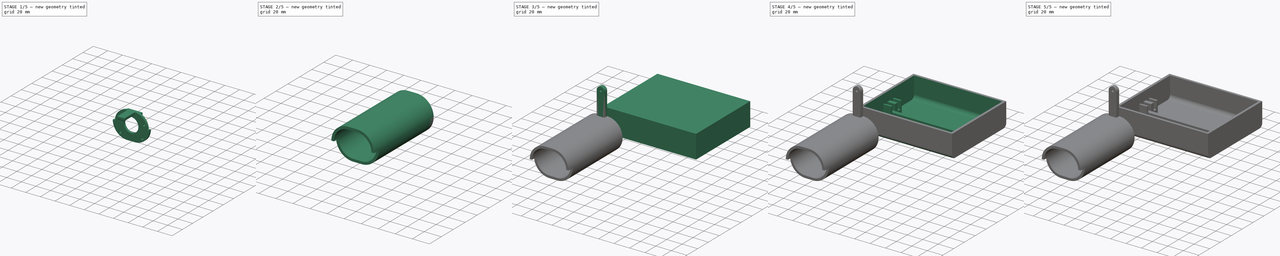
[diagram: build sequence overview — one tinted view per stage of 5, left to right]
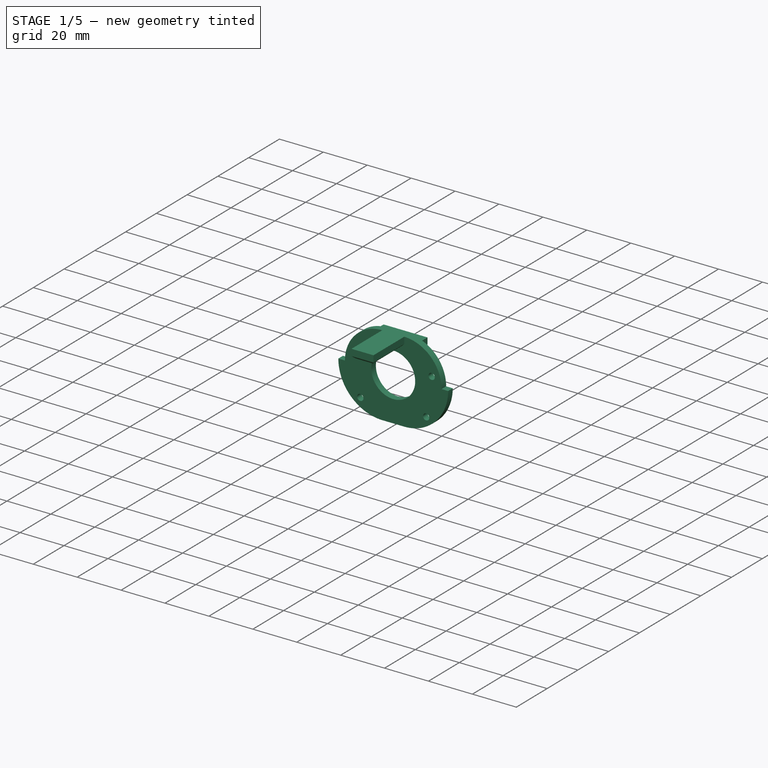
[diagram: stage 1 of 5 — iso view after this stage's code; geometry added in this stage tinted green]
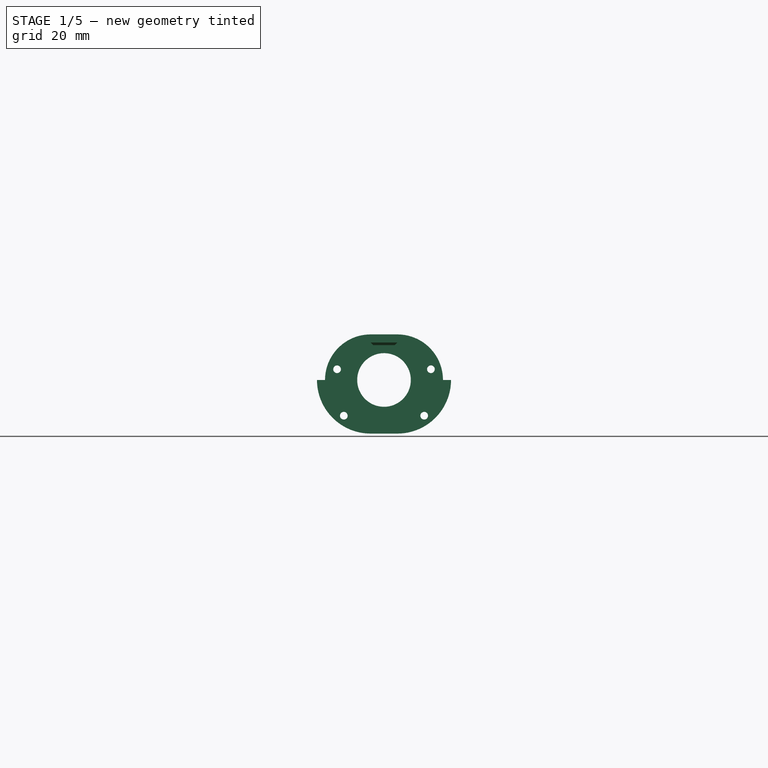
[diagram: stage 1 of 5 — front view after this stage's code; geometry added in this stage tinted green]
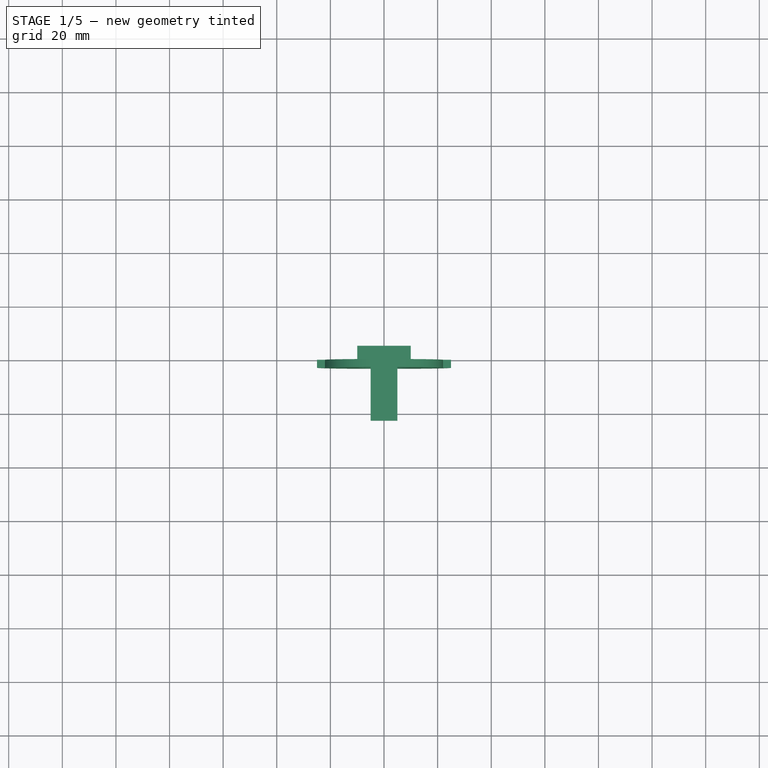
[diagram: stage 1 of 5 — top view after this stage's code; geometry added in this stage tinted green]
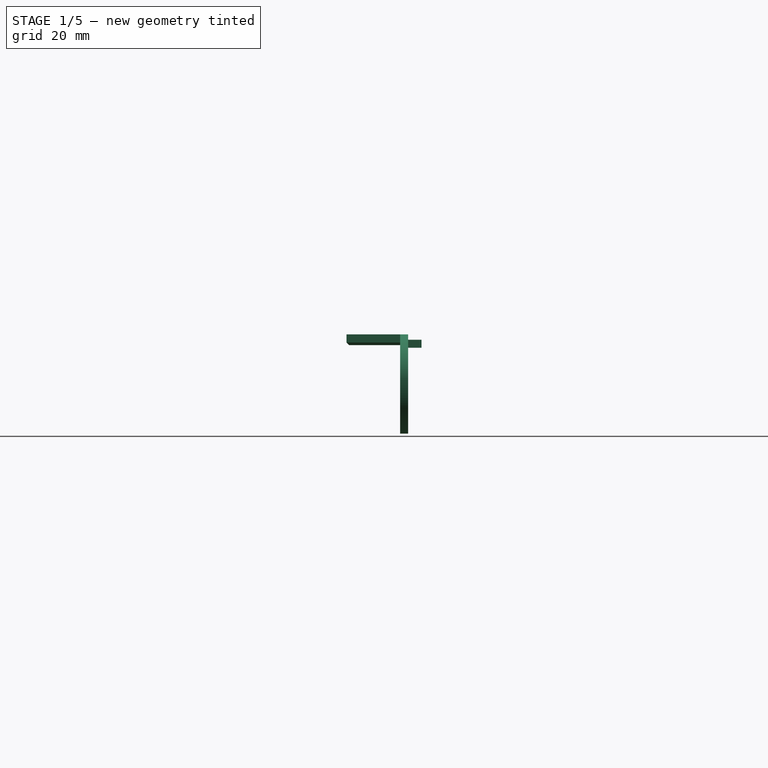
[diagram: stage 1 of 5 — right view after this stage's code; geometry added in this stage tinted green]
FCSTD DOCUMENT  (FreeCAD 0.20R29603 (Git))
Label: Throttle
License: All rights reserved
LicenseURL: http://en.wikipedia.org/wiki/All_rights_reserved
objects: Sketcher::SketchObject×28, PartDesign::Pocket×17, PartDesign::Pad×10, PartDesign::Body×8, PartDesign::Chamfer×5, Spreadsheet::Sheet×3, PartDesign::Fillet×3, Part::Box×1, PartDesign::FeatureBase×1
note: 108 computed .brp shape members not serialized (recipe doc carries the construction recipe); baked Part::Feature solids carry a one-line shape summary decoded from their .brp

FEATURE [PartDesign::Body] Body005  label="Handle Backplate"
  Group = -> [Sketch017,Pad005,Sketch018,Pocket011,Sketch019,Pocket012]
  Origin = -> Origin005
  Placement = pos=(60,55.5,76.5) rot=(0,0,1;0rad)
  Tip = -> Pocket012
FEATURE [Sketcher::SketchObject] Sketch020
  FullyConstrained = true
  MapMode = 5
  Placement = pos=(0,0,0) rot=(1,0,0;1.5708rad)
  Support = -> [XZ_Plane006]
  expr: Constraints[6] = Spreadsheet.Handle_Length - Spreadsheet.Handle_Height
  expr: Constraints[7] = Spreadsheet.Handle_Height / 2
  sketch-geometry (4):
    g0: ArcOfCircle CenterX=-5 CenterY=0 CenterZ=0 NormalX=0 NormalY=0 NormalZ=1 AngleXU=0 Radius=20 StartAngle=1.5708 EndAngle=4.71239
    g1: ArcOfCircle CenterX=5 CenterY=0 CenterZ=0 NormalX=0 NormalY=0 NormalZ=1 AngleXU=0 Radius=20 StartAngle=4.71239 EndAngle=7.85398
    g2: LineSegment StartX=-5 StartY=-20 StartZ=0 EndX=5 EndY=-20 EndZ=0
    g3: LineSegment StartX=5 StartY=20 StartZ=0 EndX=-5 EndY=20 EndZ=0
  constraints (9):
    c: Tangent(g0,g2) = -1.5708
    c: Tangent(g2,g1) = -1.5708
    c: Tangent(g1,g3) = -1.5708
    c: Tangent(g3,g0) = -1.5708
    c: Equal(g0,g1)
    c: Symmetric(g1,g0,g-2)
    c: DistanceX(g0,g1) = 10
    c: Radius(g1) = 20
    c: PointOnObject(g1,g-1)
FEATURE [PartDesign::Pad] Pad006
  Direction = (0,-1,-2e-16)
  Length = 3
  Length2 = 10
  Placement = pos=(0,0,0) rot=(1,0,0;1.5708rad)
  Profile = -> Sketch020
  ReferenceAxis = -> Sketch020 [N_Axis]
  Type = 0
FEATURE [Sketcher::SketchObject] Sketch021
  FullyConstrained = true
  MapMode = 5
  Placement = pos=(0,-3,0) rot=(1,0,0;1.5708rad)
  Support = -> [Pad006]
  expr: Constraints[10] = Spreadsheet.M3_Screw / 2
  expr: Constraints[11] = 4
  expr: Constraints[4] = Spreadsheet.Lever_Gap
  expr: Constraints[5] = Spreadsheet.Handle_Length - 15
  expr: Constraints[6] = Spreadsheet.Handle_Height / 2 * 2 / 3
  expr: Constraints[9] = Spreadsheet.M3_Screw / 2
  sketch-geometry (5):
    g0: Circle CenterX=0 CenterY=0 CenterZ=0 NormalX=0 NormalY=0 NormalZ=1 AngleXU=0 Radius=10
    g1: Circle CenterX=-15 CenterY=-13.3333 CenterZ=0 NormalX=0 NormalY=0 NormalZ=1 AngleXU=0 Radius=1.43
    g2: Circle CenterX=15 CenterY=-13.3333 CenterZ=0 NormalX=0 NormalY=0 NormalZ=1 AngleXU=0 Radius=1.43
    g3: Circle CenterX=-17.5 CenterY=4 CenterZ=0 NormalX=0 NormalY=0 NormalZ=1 AngleXU=0 Radius=1.43
    g4: Circle CenterX=17.5 CenterY=4 CenterZ=0 NormalX=0 NormalY=0 NormalZ=1 AngleXU=0 Radius=1.43
  constraints (12):
    c: Coincident(g0,g-1)
    c: Radius(g0) = 10
    c: Symmetric(g4,g3,g-2)
    c: Symmetric(g1,g2,g-2)
    c: DistanceX(g1,g2) = 30
    c: DistanceX(g3,g4) = 35
    c: DistanceY(g2,g0) = 13.3333
    c: Equal(g4,g3)
    c: Equal(g1,g2)
    c: Radius(g2) = 1.43
    c: Radius(g3) = 1.43
    c: DistanceY(g0,g3) = 4
FEATURE [PartDesign::Pocket] Pocket013
  BaseFeature = -> Pad006
  Direction = (0,1,2e-16)
  Length = 5
  Length2 = 5
  Placement = pos=(0,0,0) rot=(1,0,0;1.5708rad)
  Profile = -> Sketch021
  ReferenceAxis = -> Sketch021 [N_Axis]
  Type = 0
FEATURE [Sketcher::SketchObject] Sketch022
  FullyConstrained = true
  MapMode = 5
  Placement = pos=(0,0,0) rot=(-1,0,0;1.5708rad)
  Support = -> [Pocket013]
  expr: Constraints[9] = Spreadsheet.Handle_Height / 2 - 5
  sketch-geometry (4):
    g0: LineSegment StartX=10 StartY=-15 StartZ=0 EndX=-10 EndY=-15 EndZ=0
    g1: LineSegment StartX=-10 StartY=-15 StartZ=0 EndX=-10 EndY=-12 EndZ=0
    g2: LineSegment StartX=-10 StartY=-12 StartZ=0 EndX=10 EndY=-12 EndZ=0
    g3: LineSegment StartX=10 StartY=-12 StartZ=0 EndX=10 EndY=-15 EndZ=0
  constraints (11):
    c: Coincident(g0,g1)
    c: Coincident(g1,g2)
    c: Coincident(g2,g3)
    c: Coincident(g3,g0)
    c: Horizontal(g2)
    c: Vertical(g1)
    c: Vertical(g3)
    c: Symmetric(g0,g0,g-2)
    c: DistanceY(g3,g3) = 3
    c: DistanceY(g0,g-1) = 15
    c: DistanceX(g0,g0) = 20
FEATURE [PartDesign::Pad] Pad007
  BaseFeature = -> Pocket013
  Direction = (0,1,2e-16)
  Length = 5
  Length2 = 10
  Placement = pos=(0,0,0) rot=(1,0,0;1.5708rad)
  Profile = -> Sketch022
  ReferenceAxis = -> Sketch022 [N_Axis]
  Type = 0
  expr: Length = Spreadsheet.Lever_Width
FEATURE [Sketcher::SketchObject] Sketch026
  FullyConstrained = true
  MapMode = 5
  Placement = pos=(0,-3,0) rot=(1,0,0;1.5708rad)
  Support = -> [Pad007]
  expr: Constraints[7] = Spreadsheet.Handle_Length - Spreadsheet.Handle_Height
  expr: Constraints[9] = Spreadsheet.Handle_Height / 2 - 3
  sketch-geometry (4):
    g0: LineSegment StartX=-5 StartY=17 StartZ=0 EndX=5 EndY=17 EndZ=0
    g1: LineSegment StartX=5 StartY=17 StartZ=0 EndX=5 EndY=13 EndZ=0
    g2: LineSegment StartX=5 StartY=13 StartZ=0 EndX=-5 EndY=13 EndZ=0
    g3: LineSegment StartX=-5 StartY=13 StartZ=0 EndX=-5 EndY=17 EndZ=0
  constraints (11):
    c: Coincident(g0,g1)
    c: Coincident(g1,g2)
    c: Coincident(g2,g3)
    c: Coincident(g3,g0)
    c: Horizontal(g2)
    c: Vertical(g1)
    c: Vertical(g3)
    c: DistanceX(g2,g2) = 10
    c: DistanceY(g1,g1) = 4
    c: DistanceY(g-1,g0) = 17
    c: Symmetric(g0,g0,g-2)
FEATURE [PartDesign::Pad] Pad009
  BaseFeature = -> Pad007
  Direction = (0,-1,2e-16)
  Length = 20
  Length2 = 10
  Placement = pos=(0,0,0) rot=(1,0,0;1.5708rad)
  Profile = -> Sketch026
  ReferenceAxis = -> Sketch026 [N_Axis]
  Type = 0
FEATURE [PartDesign::Body] Body007  label="Handle"
  Group = -> [Sketch023,Pad008,Sketch024,Pocket014,Sketch025,Pocket015,Fillet001,Fillet002]
  Origin = -> Origin007
  Placement = pos=(60,-92.5,76.5) rot=(0,0,1;3.14159rad)
  Tip = -> Fillet002
FEATURE [PartDesign::Chamfer] Chamfer002
  Angle = 45
  Base = -> Pad009 [Edge49,Edge47]
  BaseFeature = -> Pad009
  ChamferType = 0
  FlipDirection = false
  Placement = pos=(0,0,0) rot=(1,0,0;1.5708rad)
  Size = 1
  Size2 = 1
  SupportTransform = false
  UseAllEdges = false
FEATURE [PartDesign::Chamfer] Chamfer003
  Angle = 45
  Base = -> Chamfer002 [Edge24]
  BaseFeature = -> Chamfer002
  ChamferType = 0
  FlipDirection = false
  Placement = pos=(0,0,0) rot=(1,0,0;1.5708rad)
  Size = 1
  Size2 = 1
  SupportTransform = false
  UseAllEdges = false
FEATURE [Sketcher::SketchObject] Sketch027
  FullyConstrained = true
  MapMode = 5
  Placement = pos=(0,-3,3e-16) rot=(1,0,0;1.5708rad)
  Support = -> [Chamfer003]
  expr: Constraints[15] = Spreadsheet.Handle_Length
  expr: Constraints[16] = Spreadsheet.Handle_Height / 2
  expr: Constraints[2] = Spreadsheet.Handle_Height / 2 - 3
  expr: Constraints[5] = Spreadsheet.Handle_Length - 6 - (Spreadsheet.Handle_Height - 6)
  expr: Constraints[6] = Spreadsheet.Handle_Length - 6
  expr: Constraints[9] = (Spreadsheet.Handle_Height - 6) / 2
  sketch-geometry (8):
    g0: ArcOfCircle CenterX=-5 CenterY=-8e-16 CenterZ=0 NormalX=0 NormalY=0 NormalZ=1 AngleXU=0 Radius=17 StartAngle=1.5708 EndAngle=3.14159
    g1: ArcOfCircle CenterX=5 CenterY=1.4e-15 CenterZ=0 NormalX=0 NormalY=0 NormalZ=1 AngleXU=0 Radius=17 StartAngle=0 EndAngle=1.5708
    g2: LineSegment StartX=-5 StartY=17 StartZ=0 EndX=5 EndY=17 EndZ=0
    g3: LineSegment StartX=-25 StartY=20 StartZ=0 EndX=25 EndY=20 EndZ=0
    g4: LineSegment StartX=25 StartY=20 StartZ=0 EndX=25 EndY=0 EndZ=0
    g5: LineSegment StartX=-25 StartY=0 StartZ=0 EndX=-25 EndY=20 EndZ=0
    g6: LineSegment StartX=-25 StartY=0 StartZ=0 EndX=-22 EndY=1.3e-15 EndZ=0
    g7: LineSegment StartX=25 StartY=1.4e-15 StartZ=0 EndX=22 EndY=1.4e-15 EndZ=0
  constraints (23):
    c: Coincident(g2,g0)
    c: Coincident(g2,g1)
    c: DistanceY(g-1,g0) = 17
    c: Equal(g1,g0)
    c: Symmetric(g0,g1,g-2)
    c: DistanceX(g2,g2) = 10
    c: DistanceX(g0,g1) = 44
    c: PointOnObject(g0,g-1)
    c: Symmetric(g0,g1,g-2)
    c: Radius(g1) = 17
    c: Coincident(g3,g4)
    c: Coincident(g5,g3)
    c: Horizontal(g3)
    c: Vertical(g4)
    c: Vertical(g5)
    c: DistanceX(g3,g3) = 50
    c: DistanceY(g4,g4) = 20
    c: Coincident(g6,g5)
    c: Coincident(g6,g0)
    c: Coincident(g7,g4)
    c: Coincident(g7,g1)
    c: Symmetric(g4,g5,g-2)
    c: Horizontal(g7)
FEATURE [PartDesign::Pocket] Pocket016
  BaseFeature = -> Chamfer003
  Direction = (0,1,-2e-16)
  Length = 3
  Length2 = 5
  Placement = pos=(0,0,0) rot=(1,0,0;1.5708rad)
  Profile = -> Sketch027
  ReferenceAxis = -> Sketch027 [N_Axis]
  Type = 0
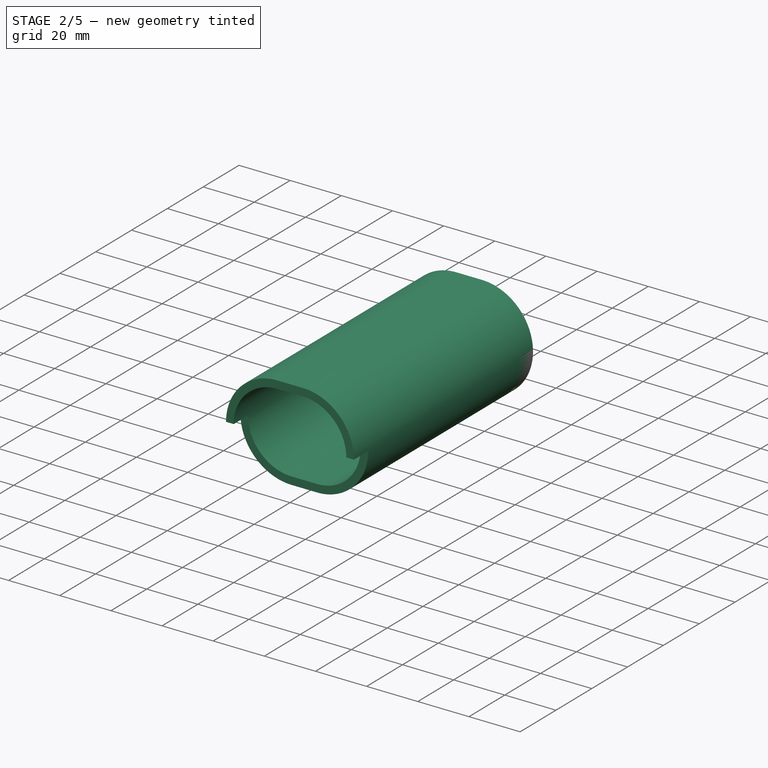
[diagram: stage 2 of 5 — iso view after this stage's code; geometry added in this stage tinted green]
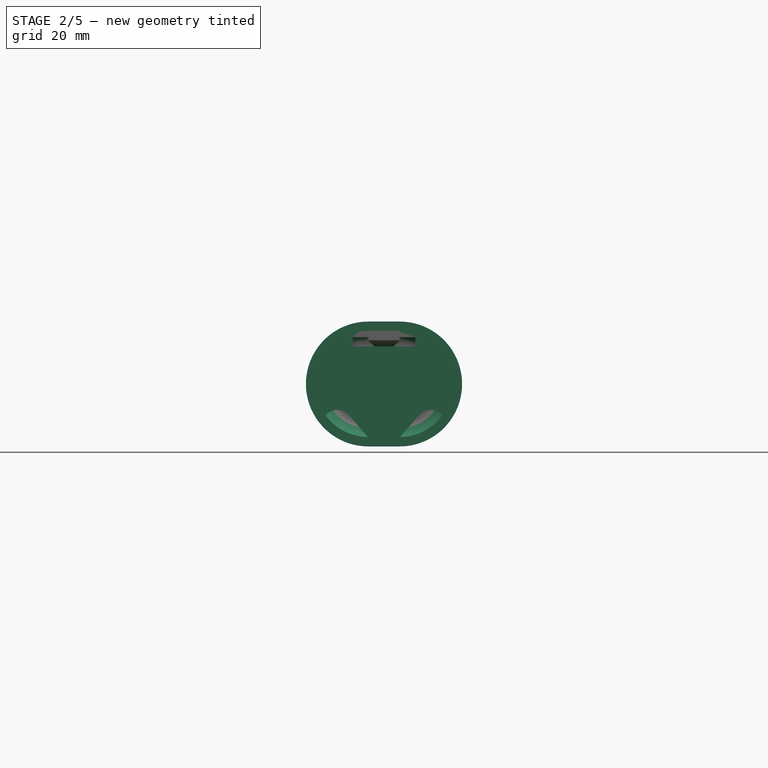
[diagram: stage 2 of 5 — front view after this stage's code; geometry added in this stage tinted green]
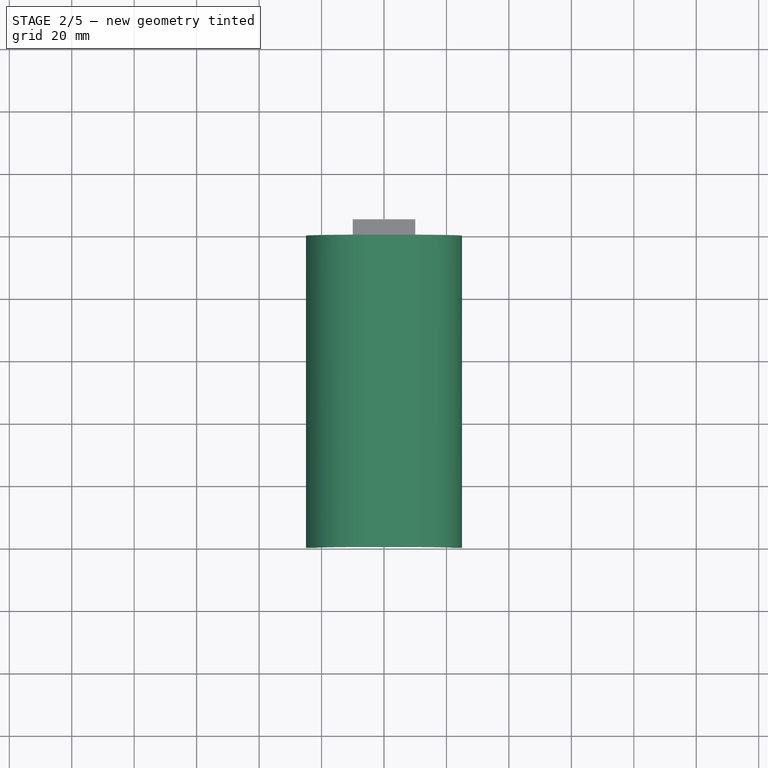
[diagram: stage 2 of 5 — top view after this stage's code; geometry added in this stage tinted green]
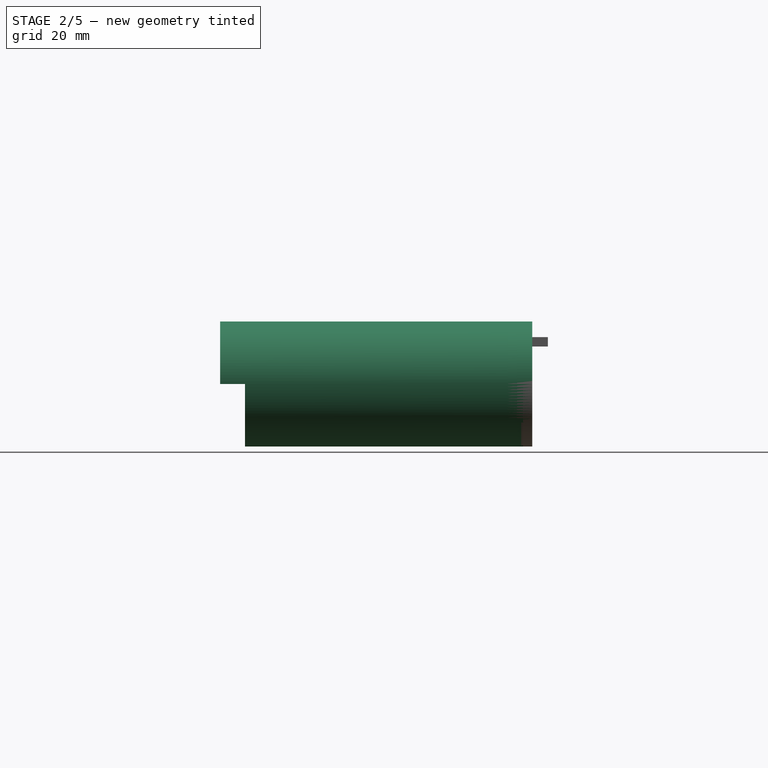
[diagram: stage 2 of 5 — right view after this stage's code; geometry added in this stage tinted green]
FEATURE [PartDesign::Body] Body004  label="front_lever"
  Group = -> [Sketch015,Pad004,Sketch016,Pocket010]
  Origin = -> Origin004
  Placement = pos=(75,52.5,13) rot=(0,0,1;0rad)
  Tip = -> Pocket010
  expr: .Placement.Base.x = Spreadsheet.Lever_Gap
FEATURE [Spreadsheet::Sheet] Spreadsheet002
  cells = A1(Base_Width)=100; C1(Support_Width)=5; A2(Base_Length)=120; C2(Support_Height)=10; A3(Base_Height)=30; A4(Base_Wall_Thickness)=3; C4(Lever_Width)=5; A5(Internal_Length)==Base_Length - Base_Wall_Thickness * 2; A6(Internal_Width)==Base_Width - Base_Wall_Thickness * 2; C7(M3_Screw)=2.86; A8=Levers; A9(Lever_Gap)=30; A10(Lever_Length)=50; A11(Bearing_Diameter)==M3_Screw; A12(Potentiometer_Diameter)=3
FEATURE [Sketcher::SketchObject] Sketch017
  FullyConstrained = true
  MapMode = 5
  Placement = pos=(0,0,0) rot=(1,0,0;1.5708rad)
  Support = -> [XZ_Plane005]
  expr: Constraints[11] = Spreadsheet.Handle_Length
  expr: Constraints[12] = Spreadsheet.Handle_Height
  expr: Constraints[16] = Spreadsheet.Handle_Height / 2
  sketch-geometry (6):
    g0: LineSegment StartX=-4.99996 StartY=20 StartZ=0 EndX=4.99996 EndY=20 EndZ=0
    g1: LineSegment StartX=4.99996 StartY=-20 StartZ=0 EndX=-4.99996 EndY=-20 EndZ=0
    g2: ArcOfCircle CenterX=-5 CenterY=1e-16 CenterZ=0 NormalX=0 NormalY=0 NormalZ=1 AngleXU=0 Radius=20 StartAngle=1.57079 EndAngle=3.14159
    g3: ArcOfCircle CenterX=-5 CenterY=1e-16 CenterZ=0 NormalX=0 NormalY=0 NormalZ=1 AngleXU=0 Radius=20 StartAngle=3.14159 EndAngle=4.71239
    g4: ArcOfCircle CenterX=5 CenterY=-7e-16 CenterZ=0 NormalX=0 NormalY=0 NormalZ=1 AngleXU=0 Radius=20 StartAngle=0 EndAngle=1.5708
    g5: ArcOfCircle CenterX=5 CenterY=-7e-16 CenterZ=0 NormalX=0 NormalY=0 NormalZ=1 AngleXU=0 Radius=20 StartAngle=4.71239 EndAngle=6.28319
  constraints (17):
    c: Horizontal(g1)
    c: Coincident(g5,g1)
    c: Coincident(g4,g0)
    c: Coincident(g0,g2)
    c: Coincident(g1,g3)
    c: PointOnObject(g3,g-1)
    c: Symmetric(g1,g0,g-1)
    c: Coincident(g5,g4)
    c: Coincident(g4,g5)
    c: Coincident(g3,g2)
    c: Coincident(g3,g2)
    c: DistanceX(g2,g4) = 50
    c: DistanceY(g1,g0) = 40
    c: Symmetric(g2,g4,g-2)
    c: Symmetric(g0,g0,g-2)
    c: Vertical(g0,g1)
    c: Radius(g3) = 20
FEATURE [PartDesign::Pad] Pad005
  Direction = (0,-1,-2e-16)
  Length = 8
  Length2 = 10
  Placement = pos=(0,0,0) rot=(1,0,0;1.5708rad)
  Profile = -> Sketch017
  ReferenceAxis = -> Sketch017 [N_Axis]
  Type = 0
  expr: Length = Spreadsheet.Support_Width + 3
FEATURE [Sketcher::SketchObject] Sketch018
  FullyConstrained = true
  MapMode = 5
  Placement = pos=(0,-8,0) rot=(1,0,0;1.5708rad)
  Support = -> [Pad005]
  expr: .Constraints.Lever_mount_point = Spreadsheet.Handle_Height / 2 * 2 / 3
  expr: Constraints[14] = Spreadsheet.Lever_Side_length / 2
  expr: Constraints[17] = Spreadsheet.Handle_Height / 2 - Spreadsheet.Handle_Height / 2 * 2 / 3
  expr: Constraints[25] = Spreadsheet.Handle_Height / 2 - 5
  expr: Constraints[8] = Spreadsheet.Lever_Gap
  sketch-geometry (12):
    g0: ArcOfCircle CenterX=-15 CenterY=-13.3333 CenterZ=0 NormalX=0 NormalY=0 NormalZ=1 AngleXU=0 Radius=5 StartAngle=0.720126 EndAngle=2.42147
    g1: ArcOfCircle CenterX=-15 CenterY=-30.9661 CenterZ=0 NormalX=0 NormalY=0 NormalZ=1 AngleXU=0 Radius=16.6285 StartAngle=2.42147 EndAngle=7.00331
    g2: LineSegment StartX=-18.7586 StartY=-10.0359 StartZ=0 EndX=-27.5 EndY=-20 EndZ=0
    g3: LineSegment StartX=-2.5 StartY=-20 StartZ=0 EndX=-11.2414 EndY=-10.0359 EndZ=0
    g4: ArcOfCircle CenterX=15 CenterY=-13.3333 CenterZ=0 NormalX=0 NormalY=0 NormalZ=1 AngleXU=0 Radius=5 StartAngle=0.720126 EndAngle=2.42147
    g5: ArcOfCircle CenterX=15 CenterY=-30.9661 CenterZ=0 NormalX=0 NormalY=0 NormalZ=1 AngleXU=0 Radius=16.6285 StartAngle=2.42147 EndAngle=7.00331
    g6: LineSegment StartX=11.2414 StartY=-10.0359 StartZ=0 EndX=2.5 EndY=-20 EndZ=0
    g7: LineSegment StartX=27.5 StartY=-20 StartZ=0 EndX=18.7586 EndY=-10.0359 EndZ=0
    g8: LineSegment StartX=-10 StartY=15 StartZ=0 EndX=10 EndY=15 EndZ=0
    g9: LineSegment StartX=10 StartY=15 StartZ=0 EndX=10 EndY=12 EndZ=0
    g10: LineSegment StartX=10 StartY=12 StartZ=0 EndX=-10 EndY=12 EndZ=0
    g11: LineSegment StartX=-10 StartY=12 StartZ=0 EndX=-10 EndY=15 EndZ=0
  constraints (29):
    c: Tangent(g0,g2) = -1.5708
    c: Tangent(g2,g1) = -1.5708
    c: Tangent(g1,g3) = -1.5708
    c: Tangent(g3,g0) = -1.5708
    c: Tangent(g4,g6) = -1.5708
    c: Tangent(g6,g5) = -1.5708
    c: Tangent(g5,g7) = -1.5708
    c: Tangent(g7,g4) = -1.5708
    c: DistanceX(g0,g4) = 30
    c: Symmetric(g0,g4,g-2)
    c: Symmetric(g1,g5,g-2)
    c: Equal(g0,g4)
    c: Equal(g1,g5)
    c: Vertical(g0,g1)
    c: Radius(g0) = 5
    c: DistanceX(g1,g5) = 5
    c: DistanceY(g4,g-1) = 13.3333  'Lever_mount_point'
    c: DistanceY(g5,g4) = 6.66667
    c: Coincident(g8,g9)
    c: Coincident(g9,g10)
    c: Coincident(g10,g11)
    c: Coincident(g11,g8)
    c: Horizontal(g8)
    c: Vertical(g9)
    c: Vertical(g11)
    c: DistanceY(g-1,g8) = 15
    c: DistanceY(g9,g8) = 3
    c: DistanceX(g10,g10) = 20
    c: Symmetric(g10,g9,g-2)
FEATURE [PartDesign::Pocket] Pocket011
  BaseFeature = -> Pad005
  Direction = (0,1,2e-16)
  Length = 5
  Length2 = 5
  Placement = pos=(0,0,0) rot=(1,0,0;1.5708rad)
  Profile = -> Sketch018
  ReferenceAxis = -> Sketch018 [N_Axis]
  Type = 0
  expr: Length = Spreadsheet.Lever_Width
FEATURE [Sketcher::SketchObject] Sketch023
  FullyConstrained = true
  MapMode = 5
  Placement = pos=(0,0,0) rot=(1,0,0;1.5708rad)
  Support = -> [XZ_Plane007]
  expr: Constraints[5] = Spreadsheet.Handle_Length - Spreadsheet.Handle_Height
  expr: Constraints[6] = Spreadsheet.Handle_Height / 2
  sketch-geometry (4):
    g0: ArcOfCircle CenterX=-5 CenterY=0 CenterZ=0 NormalX=0 NormalY=0 NormalZ=1 AngleXU=0 Radius=20 StartAngle=1.5708 EndAngle=4.71239
    g1: ArcOfCircle CenterX=5 CenterY=0 CenterZ=0 NormalX=0 NormalY=0 NormalZ=1 AngleXU=0 Radius=20 StartAngle=4.71239 EndAngle=7.85398
    g2: LineSegment StartX=-5 StartY=-20 StartZ=0 EndX=5 EndY=-20 EndZ=0
    g3: LineSegment StartX=5 StartY=20 StartZ=0 EndX=-5 EndY=20 EndZ=0
  constraints (9):
    c: Tangent(g0,g2) = -1.5708
    c: Tangent(g2,g1) = -1.5708
    c: Tangent(g1,g3) = -1.5708
    c: Tangent(g3,g0) = -1.5708
    c: Equal(g0,g1)
    c: DistanceX(g0,g1) = 10
    c: Radius(g1) = 20
    c: PointOnObject(g0,g-1)
    c: Symmetric(g0,g1,g-2)
FEATURE [PartDesign::Pad] Pad008
  Direction = (0,-1,-2e-16)
  Length = 100
  Length2 = 10
  Placement = pos=(0,0,0) rot=(1,0,0;1.5708rad)
  Profile = -> Sketch023
  ReferenceAxis = -> Sketch023 [N_Axis]
  Type = 0
  expr: Length = Spreadsheet.Handle_Depth
FEATURE [Sketcher::SketchObject] Sketch024
  FullyConstrained = true
  MapMode = 5
  Placement = pos=(0,-100,2e-16) rot=(1,0,0;1.5708rad)
  Support = -> [Pad008]
  expr: Constraints[6] = Spreadsheet.Handle_Length - 6 - (Spreadsheet.Handle_Height - 6)
  expr: Constraints[7] = (Spreadsheet.Handle_Height - 6) / 2
  sketch-geometry (4):
    g0: ArcOfCircle CenterX=-5 CenterY=0 CenterZ=0 NormalX=0 NormalY=0 NormalZ=1 AngleXU=0 Radius=17 StartAngle=1.5708 EndAngle=4.71239
    g1: ArcOfCircle CenterX=5 CenterY=0 CenterZ=0 NormalX=0 NormalY=0 NormalZ=1 AngleXU=0 Radius=17 StartAngle=4.71239 EndAngle=7.85398
    g2: LineSegment StartX=-5 StartY=-17 StartZ=0 EndX=5 EndY=-17 EndZ=0
    g3: LineSegment StartX=5 StartY=17 StartZ=0 EndX=-5 EndY=17 EndZ=0
  constraints (9):
    c: Tangent(g0,g2) = -1.5708
    c: Tangent(g2,g1) = -1.5708
    c: Tangent(g1,g3) = -1.5708
    c: Tangent(g3,g0) = -1.5708
    c: Equal(g0,g1)
    c: PointOnObject(g0,g-1)
    c: DistanceX(g0,g1) = 10
    c: Radius(g1) = 17
    c: Symmetric(g0,g1,g-2)
FEATURE [PartDesign::Pocket] Pocket014
  BaseFeature = -> Pad008
  Direction = (0,1,2e-16)
  Length = 97
  Length2 = 5
  Placement = pos=(0,0,0) rot=(1,0,0;1.5708rad)
  Profile = -> Sketch024
  ReferenceAxis = -> Sketch024 [N_Axis]
  Type = 0
  expr: Length = Spreadsheet.Handle_Depth - 3
FEATURE [Sketcher::SketchObject] Sketch025
  FullyConstrained = true
  MapMode = 5
  Placement = pos=(0,-100,2e-16) rot=(1,0,0;1.5708rad)
  Support = -> [Pocket014]
  expr: Constraints[10] = Spreadsheet.Handle_Length
  expr: Constraints[8] = Spreadsheet.Handle_Height / 2
  sketch-geometry (4):
    g0: LineSegment StartX=-25 StartY=0 StartZ=0 EndX=25 EndY=0 EndZ=0
    g1: LineSegment StartX=25 StartY=0 StartZ=0 EndX=25 EndY=-20 EndZ=0
    g2: LineSegment StartX=25 StartY=-20 StartZ=0 EndX=-25 EndY=-20 EndZ=0
    g3: LineSegment StartX=-25 StartY=-20 StartZ=0 EndX=-25 EndY=0 EndZ=0
  constraints (11):
    c: Coincident(g0,g1)
    c: Coincident(g1,g2)
    c: Coincident(g2,g3)
    c: Coincident(g3,g0)
    c: Horizontal(g2)
    c: Vertical(g1)
    c: Vertical(g3)
    c: PointOnObject(g0,g-1)
    c: DistanceY(g1,g1) = 20
    c: Symmetric(g0,g0,g-2)
    c: DistanceX(g2,g2) = 50
FEATURE [PartDesign::Pocket] Pocket015
  BaseFeature = -> Pocket014
  Direction = (0,1,2e-16)
  Length = 8
  Length2 = 5
  Placement = pos=(0,0,0) rot=(1,0,0;1.5708rad)
  Profile = -> Sketch025
  ReferenceAxis = -> Sketch025 [N_Axis]
  Type = 0
FEATURE [PartDesign::Fillet] Fillet001
  Base = -> Pocket015 [Face2]
  BaseFeature = -> Pocket015
  Placement = pos=(0,0,0) rot=(1,0,0;1.5708rad)
  Radius = 5
  SupportTransform = false
  UseAllEdges = false
FEATURE [PartDesign::Fillet] Fillet002
  Base = -> Fillet001 [Face18]
  BaseFeature = -> Fillet001
  Placement = pos=(0,0,0) rot=(1,0,0;1.5708rad)
  Radius = 5
  SupportTransform = false
  UseAllEdges = false
FEATURE [PartDesign::Chamfer] Chamfer004
  Angle = 45
  Base = -> Pocket016 [Edge6]
  BaseFeature = -> Pocket016
  ChamferType = 0
  FlipDirection = false
  Placement = pos=(0,0,0) rot=(1,0,0;1.5708rad)
  Size = 3
  Size2 = 1
  SupportTransform = false
  UseAllEdges = false
FEATURE [PartDesign::Body] Body006  label="Handle Backplate Cover"
  Group = -> [Sketch020,Pad006,Sketch021,Pocket013,Sketch022,Pad007,Sketch026,Pad009,Chamfer002,Chamfer003,Sketch027,Pocket016,Chamfer004]
  Origin = -> Origin006
  Placement = pos=(60,47.5,76.5) rot=(0,0,1;0rad)
  Tip = -> Chamfer004
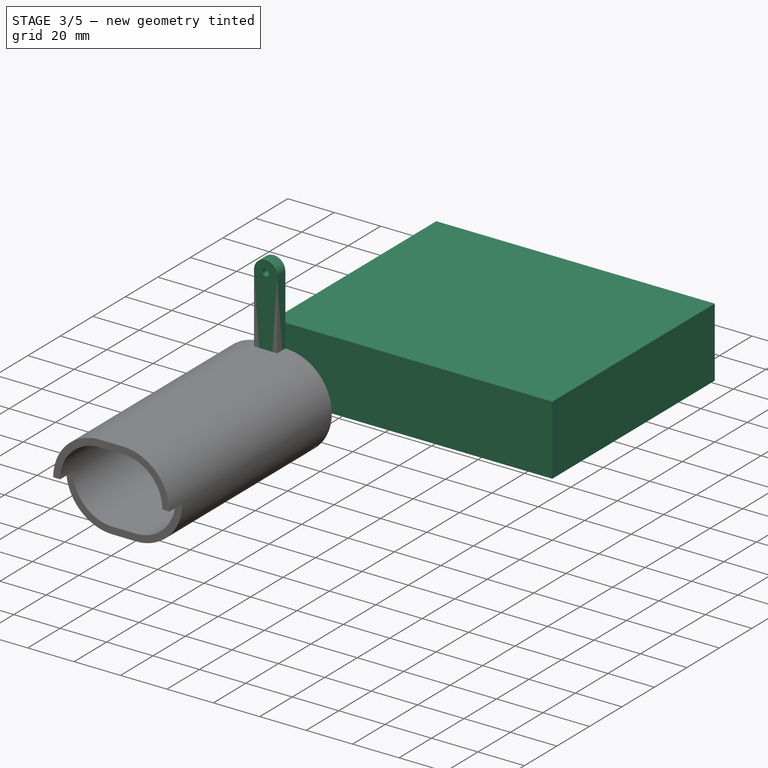
[diagram: stage 3 of 5 — iso view after this stage's code; geometry added in this stage tinted green]
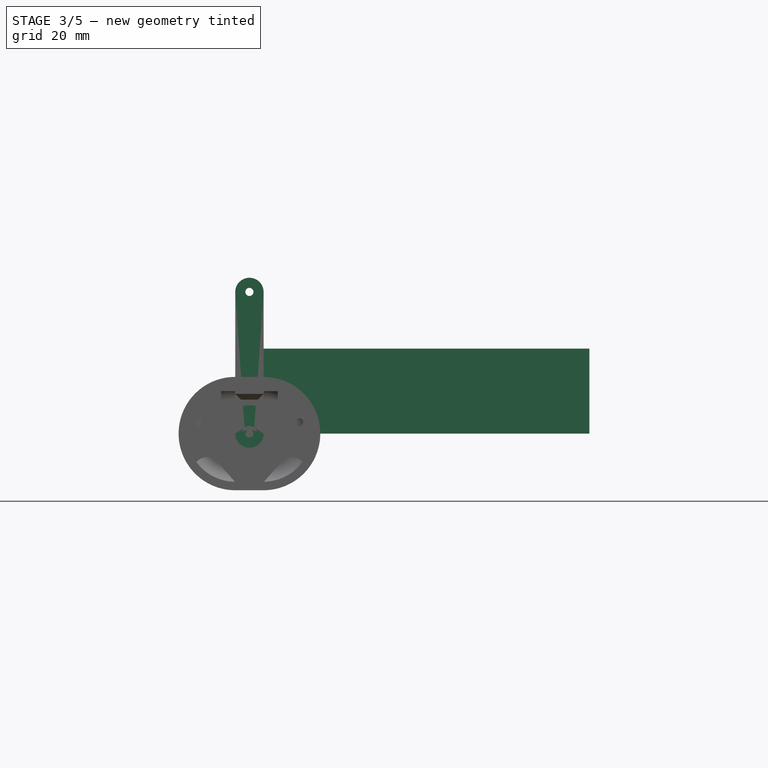
[diagram: stage 3 of 5 — front view after this stage's code; geometry added in this stage tinted green]
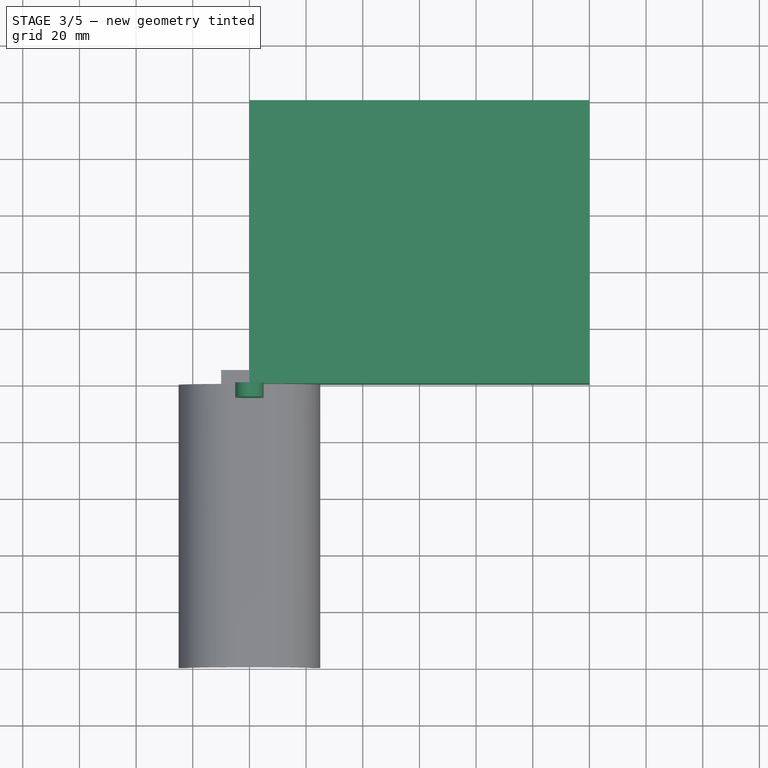
[diagram: stage 3 of 5 — top view after this stage's code; geometry added in this stage tinted green]
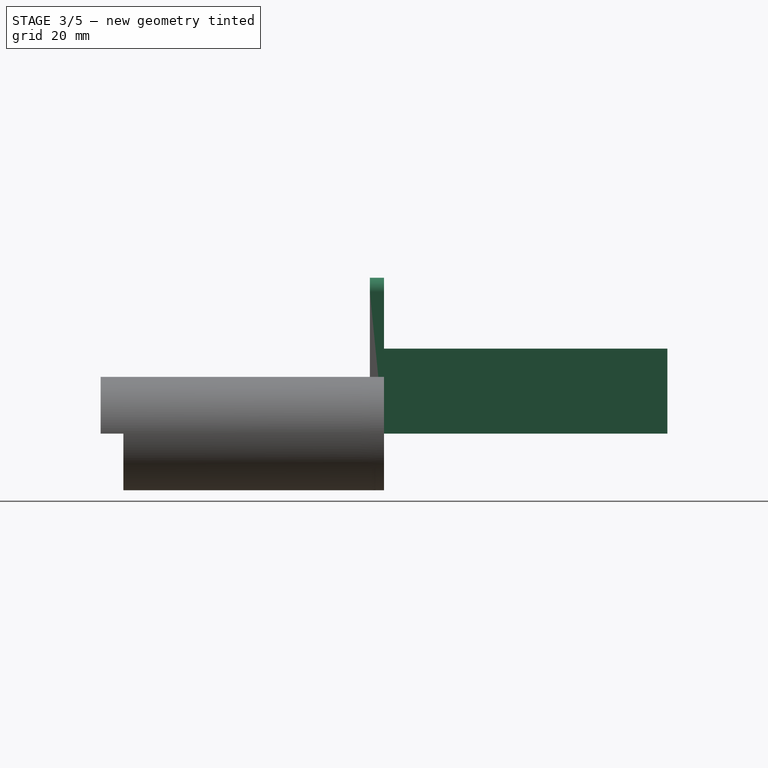
[diagram: stage 3 of 5 — right view after this stage's code; geometry added in this stage tinted green]
FEATURE [Part::Box] Box  label="Cube"
  AttacherType = Attacher::AttachEngine3D
  Height = 30
  Length = 120
  Width = 100
  expr: Height = Spreadsheet.Base_Height
  expr: Length = Spreadsheet.Base_Length
  expr: Width = Spreadsheet.Base_Width
FEATURE [Spreadsheet::Sheet] Spreadsheet
  cells = A1(Base_Width)=100; C1(Support_Width)=5; A2(Base_Length)=120; C2(Support_Height)=10; A3(Base_Height)=30; A4(Base_Wall_Thickness)=3; C4(Lever_Width)=5; A5(Internal_Length)==Base_Length - Base_Wall_Thickness * 2; A6(Internal_Width)==Base_Width - Base_Wall_Thickness * 2; C7(M3_Screw)=2.86; A8=Levers; B8=Handle; A9(Lever_Gap)=30; B9(Handle_Length)=50; A10(Lever_Length)=50; B10(Handle_Height)=40; A11(Bearing_Diameter)==M3_Screw; B11(Handle_Depth)=100; A12(Potentiometer_Diameter)=5.5; A13(Lever_Side_length)=10
FEATURE [PartDesign::FeatureBase] BaseFeature
  BaseFeature = -> Box
FEATURE [Sketcher::SketchObject] Sketch012
  FullyConstrained = true
  MapMode = 5
  Placement = pos=(0,0,3) rot=(0,0,1;0rad)
  Support = -> [Pocket008]
FEATURE [PartDesign::Body] Body  label="Case"
  BaseFeature = -> Box
  Group = -> [BaseFeature,Sketch,Pocket,Sketch001,Pad,Sketch002,Pocket001,Sketch003,Pocket002,Sketch008,Pocket005,Fillet,Sketch011,Pocket008,Sketch012]
  Origin = -> Origin
  Tip = -> Pocket008
FEATURE [Sketcher::SketchObject] Sketch013
  FullyConstrained = true
  MapMode = 5
  Placement = pos=(0,0,0) rot=(1,0,0;1.5708rad)
  Support = -> [XZ_Plane003]
  expr: Constraints[12] = Spreadsheet.Lever_Length
  sketch-geometry (4):
    g0: LineSegment StartX=5 StartY=50 StartZ=0 EndX=5 EndY=0 EndZ=0
    g1: LineSegment StartX=-5 StartY=-1.2e-15 StartZ=0 EndX=-5 EndY=50 EndZ=0
    g2: ArcOfCircle CenterX=1e-16 CenterY=50 CenterZ=0 NormalX=0 NormalY=0 NormalZ=1 AngleXU=0 Radius=5 StartAngle=0 EndAngle=3.14159
    g3: ArcOfCircle CenterX=0 CenterY=-1.2e-15 CenterZ=0 NormalX=0 NormalY=0 NormalZ=1 AngleXU=0 Radius=5 StartAngle=3.14159 EndAngle=6.28319
  constraints (13):
    c: Vertical(g0)
    c: Vertical(g1)
    c: Coincident(g2,g0)
    c: Coincident(g2,g1)
    c: Horizontal(g1,g0)
    c: Horizontal(g2,g0)
    c: Horizontal(g3,g3)
    c: Coincident(g3,g1)
    c: Coincident(g3,g0)
    c: Horizontal(g3,g0)
    c: Coincident(g3,g-1)
    c: DistanceX(g1,g0) = 10
    c: DistanceY(g1,g1) = 50
FEATURE [PartDesign::Pad] Pad003
  Direction = (0,-1,-2e-16)
  Length = 5
  Length2 = 10
  Placement = pos=(0,0,0) rot=(1,0,0;1.5708rad)
  Profile = -> Sketch013
  ReferenceAxis = -> Sketch013 [N_Axis]
  Type = 0
  expr: Length = Spreadsheet.Lever_Width
FEATURE [Sketcher::SketchObject] Sketch014
  FullyConstrained = true
  MapMode = 5
  Placement = pos=(0,-5,0) rot=(1,0,0;1.5708rad)
  Support = -> [Pad003]
  expr: Constraints[1] = Spreadsheet.Potentiometer_Diameter / 2
  expr: Constraints[3] = Spreadsheet.M3_Screw / 2
  expr: Constraints[4] = Spreadsheet.Lever_Length
  sketch-geometry (2):
    g0: Circle CenterX=0 CenterY=0 CenterZ=0 NormalX=0 NormalY=0 NormalZ=1 AngleXU=0 Radius=2.75
    g1: Circle CenterX=0 CenterY=50 CenterZ=0 NormalX=0 NormalY=0 NormalZ=1 AngleXU=0 Radius=1.43
  constraints (5):
    c: Coincident(g0,g-1)
    c: Radius(g0) = 2.75
    c: PointOnObject(g1,g-2)
    c: Radius(g1) = 1.43
    c: DistanceY(g0,g1) = 50
FEATURE [PartDesign::Pocket] Pocket009
  BaseFeature = -> Pad003
  Direction = (0,1,2e-16)
  Length = 5
  Length2 = 5
  Placement = pos=(0,0,0) rot=(1,0,0;1.5708rad)
  Profile = -> Sketch014
  ReferenceAxis = -> Sketch014 [N_Axis]
  Type = 0
  expr: Length = Spreadsheet.Lever_Width
FEATURE [PartDesign::Body] Body003  label="Back_lever"
  Group = -> [Sketch013,Pad003,Sketch014,Pocket009]
  Origin = -> Origin003
  Placement = pos=(45,52.5,13) rot=(0,0,1;0rad)
  Tip = -> Pocket009
FEATURE [Sketcher::SketchObject] Sketch015
  FullyConstrained = true
  MapMode = 5
  Placement = pos=(0,0,0) rot=(1,0,0;1.5708rad)
  Support = -> [XZ_Plane004]
  expr: Constraints[12] = Spreadsheet002.Lever_Length
  sketch-geometry (4):
    g0: LineSegment StartX=5 StartY=50 StartZ=0 EndX=5 EndY=0 EndZ=0
    g1: LineSegment StartX=-5 StartY=0 StartZ=0 EndX=-5 EndY=50 EndZ=0
    g2: ArcOfCircle CenterX=1e-16 CenterY=50 CenterZ=0 NormalX=0 NormalY=0 NormalZ=1 AngleXU=0 Radius=5 StartAngle=0 EndAngle=3.14159
    g3: ArcOfCircle CenterX=0 CenterY=0 CenterZ=0 NormalX=0 NormalY=0 NormalZ=1 AngleXU=0 Radius=5 StartAngle=3.14159 EndAngle=6.28319
  constraints (13):
    c: Vertical(g0)
    c: Vertical(g1)
    c: Coincident(g2,g0)
    c: Coincident(g2,g1)
    c: Horizontal(g1,g0)
    c: Horizontal(g2,g0)
    c: Horizontal(g3,g3)
    c: Coincident(g3,g1)
    c: Coincident(g3,g0)
    c: Horizontal(g3,g0)
    c: Coincident(g3,g-1)
    c: DistanceX(g1,g0) = 10
    c: DistanceY(g1,g1) = 50
FEATURE [PartDesign::Pad] Pad004
  Direction = (0,-1,2e-16)
  Length = 5
  Length2 = 10
  Placement = pos=(0,0,0) rot=(1,0,0;1.5708rad)
  Profile = -> Sketch015
  ReferenceAxis = -> Sketch015 [N_Axis]
  Type = 0
  expr: Length = Spreadsheet002.Lever_Width
FEATURE [Sketcher::SketchObject] Sketch016
  FullyConstrained = true
  MapMode = 5
  Placement = pos=(0,-5,1.1e-15) rot=(1,0,0;1.5708rad)
  Support = -> [Pad004]
  expr: Constraints[1] = Spreadsheet.M3_Screw / 2
  expr: Constraints[3] = Spreadsheet002.M3_Screw / 2
  expr: Constraints[4] = Spreadsheet002.Lever_Length
  sketch-geometry (2):
    g0: Circle CenterX=0 CenterY=0 CenterZ=0 NormalX=0 NormalY=0 NormalZ=1 AngleXU=0 Radius=1.43
    g1: Circle CenterX=0 CenterY=50 CenterZ=0 NormalX=0 NormalY=0 NormalZ=1 AngleXU=0 Radius=1.43
  constraints (5):
    c: Coincident(g0,g-1)
    c: Radius(g0) = 1.43
    c: PointOnObject(g1,g-2)
    c: Radius(g1) = 1.43
    c: DistanceY(g0,g1) = 50
FEATURE [PartDesign::Pocket] Pocket010
  BaseFeature = -> Pad004
  Direction = (0,1,-2e-16)
  Length = 5
  Length2 = 5
  Placement = pos=(0,0,0) rot=(1,0,0;1.5708rad)
  Profile = -> Sketch016
  ReferenceAxis = -> Sketch016 [N_Axis]
  Type = 0
  expr: Length = Spreadsheet002.Lever_Width
FEATURE [Sketcher::SketchObject] Sketch019
  FullyConstrained = true
  MapMode = 5
  Placement = pos=(0,-8,0) rot=(1,0,0;1.5708rad)
  Support = -> [Pocket011]
  expr: Constraints[10] = Spreadsheet.Lever_Gap
  expr: Constraints[3] = Spreadsheet.M3_Screw / 2
  expr: Constraints[4] = Spreadsheet.M3_Screw / 2
  expr: Constraints[8] = Spreadsheet.Handle_Height / 2 * 2 / 3
  expr: Constraints[9] = Spreadsheet.Handle_Length - 15
  sketch-geometry (5):
    g0: Circle CenterX=0 CenterY=0 CenterZ=0 NormalX=0 NormalY=0 NormalZ=1 AngleXU=0 Radius=10
    g1: Circle CenterX=-15 CenterY=-13.3333 CenterZ=0 NormalX=0 NormalY=0 NormalZ=1 AngleXU=0 Radius=1.43
    g2: Circle CenterX=15 CenterY=-13.3333 CenterZ=0 NormalX=0 NormalY=0 NormalZ=1 AngleXU=0 Radius=1.43
    g3: Circle CenterX=-17.5 CenterY=4 CenterZ=0 NormalX=0 NormalY=0 NormalZ=1 AngleXU=0 Radius=1.43
    g4: Circle CenterX=17.5 CenterY=4 CenterZ=0 NormalX=0 NormalY=0 NormalZ=1 AngleXU=0 Radius=1.43
  constraints (12):
    c: Coincident(g0,g-1)
    c: Equal(g3,g4)
    c: Equal(g2,g1)
    c: Radius(g4) = 1.43
    c: Radius(g2) = 1.43
    c: Radius(g0) = 10
    c: Symmetric(g4,g3,g-2)
    c: Symmetric(g1,g2,g-2)
    c: DistanceY(g1,g0) = 13.3333
    c: DistanceX(g3,g4) = 35
    c: DistanceX(g1,g2) = 30
    c: DistanceY(g0,g3) = 4
FEATURE [PartDesign::Pocket] Pocket012
  BaseFeature = -> Pocket011
  Direction = (0,1,2e-16)
  Length = 10
  Length2 = 5
  Placement = pos=(0,0,0) rot=(1,0,0;1.5708rad)
  Profile = -> Sketch019
  ReferenceAxis = -> Sketch019 [N_Axis]
  Type = 0
  expr: Length = Spreadsheet.Lever_Width + 5
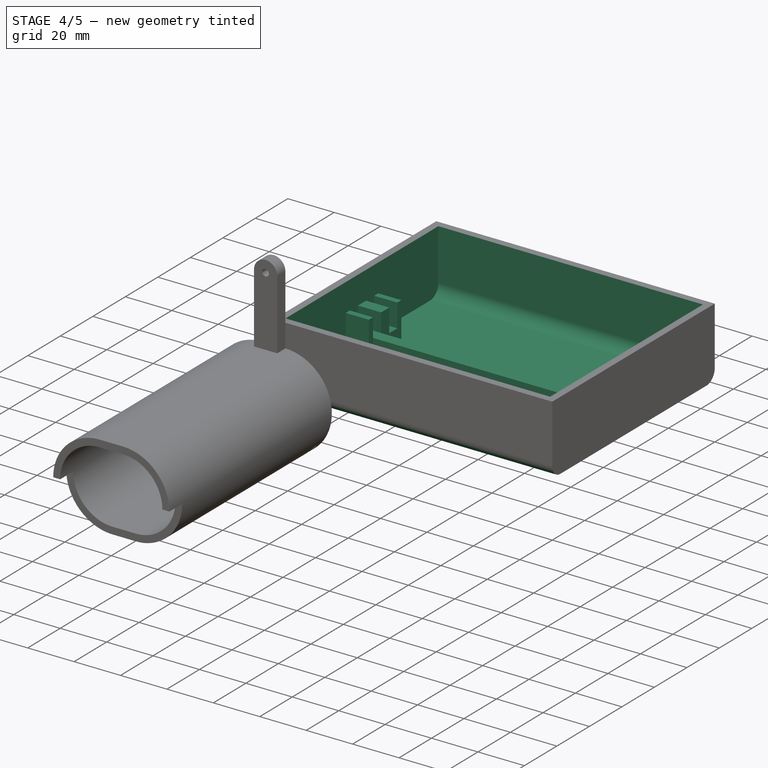
[diagram: stage 4 of 5 — iso view after this stage's code; geometry added in this stage tinted green]
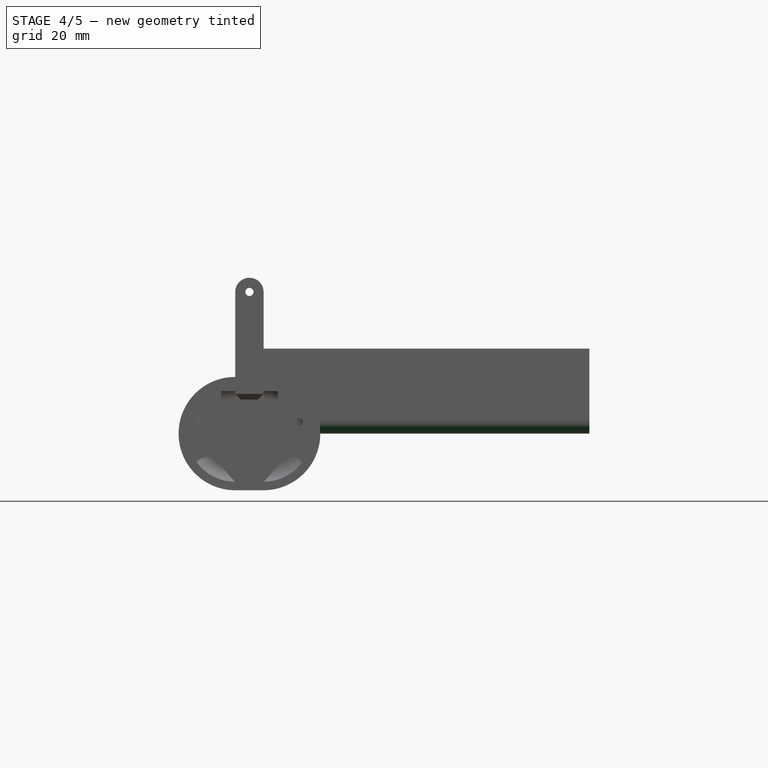
[diagram: stage 4 of 5 — front view after this stage's code; geometry added in this stage tinted green]
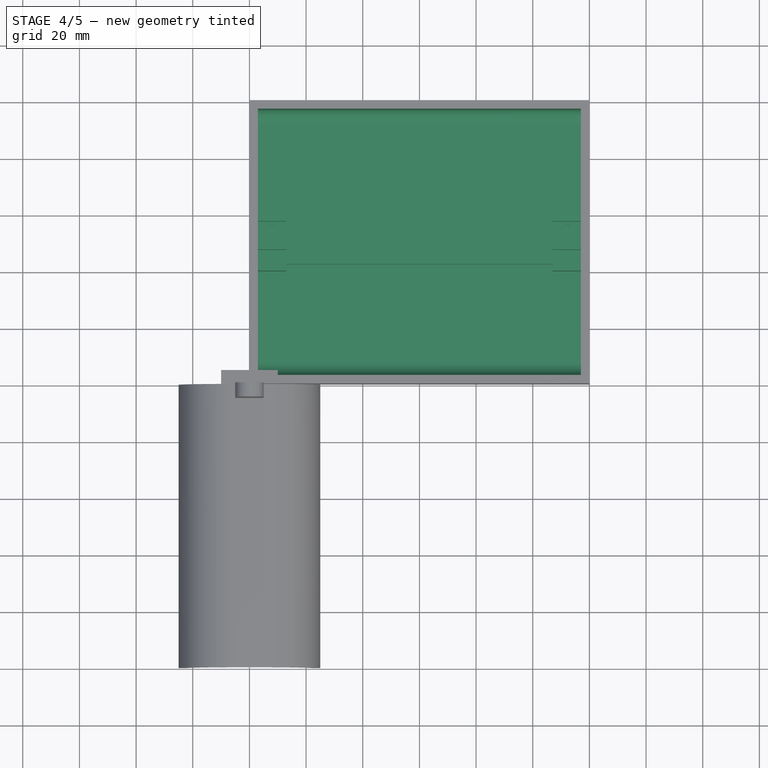
[diagram: stage 4 of 5 — top view after this stage's code; geometry added in this stage tinted green]
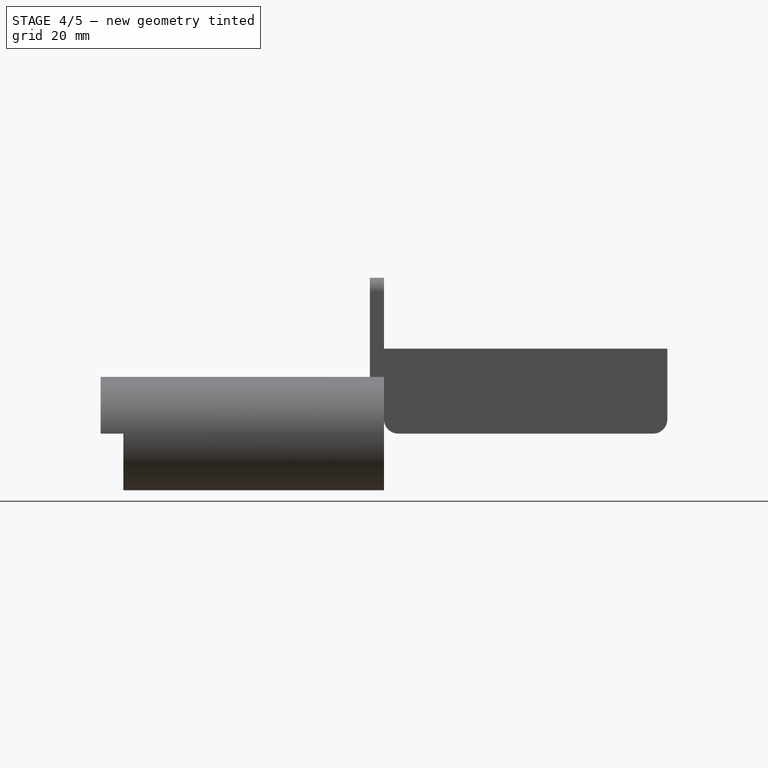
[diagram: stage 4 of 5 — right view after this stage's code; geometry added in this stage tinted green]
FEATURE [Sketcher::SketchObject] Sketch
  FullyConstrained = true
  MapMode = 5
  Placement = pos=(0,0,30) rot=(0,0,1;0rad)
  Support = -> [BaseFeature]
  expr: Constraints[10] = Spreadsheet.Base_Width - Spreadsheet.Base_Wall_Thickness * 2
  expr: Constraints[11] = Spreadsheet.Base_Wall_Thickness
  expr: Constraints[8] = Spreadsheet.Base_Length - Spreadsheet.Base_Wall_Thickness * 2
  expr: Constraints[9] = Spreadsheet.Base_Wall_Thickness
  sketch-geometry (4):
    g0: LineSegment StartX=3 StartY=97 StartZ=0 EndX=117 EndY=97 EndZ=0
    g1: LineSegment StartX=117 StartY=97 StartZ=0 EndX=117 EndY=3 EndZ=0
    g2: LineSegment StartX=117 StartY=3 StartZ=0 EndX=3 EndY=3 EndZ=0
    g3: LineSegment StartX=3 StartY=3 StartZ=0 EndX=3 EndY=97 EndZ=0
  constraints (12):
    c: Coincident(g0,g1)
    c: Coincident(g1,g2)
    c: Coincident(g2,g3)
    c: Coincident(g3,g0)
    c: Horizontal(g0)
    c: Horizontal(g2)
    c: Vertical(g1)
    c: Vertical(g3)
    c: DistanceX(g2,g2) = 114
    c: DistanceX(g-1,g2) = 3
    c: DistanceY(g3,g3) = 94
    c: DistanceY(g-1,g2) = 3
FEATURE [PartDesign::Pocket] Pocket
  BaseFeature = -> BaseFeature
  Direction = (0,0,-1)
  Length = 27
  Length2 = 5
  Profile = -> Sketch
  ReferenceAxis = -> Sketch [N_Axis]
  Type = 0
  expr: Length = Spreadsheet.Base_Height - Spreadsheet.Base_Wall_Thickness
FEATURE [Sketcher::SketchObject] Sketch001
  FullyConstrained = true
  MapMode = 5
  Placement = pos=(0,0,3) rot=(0,0,1;0rad)
  Support = -> [Pocket]
  expr: .Constraints.Support_mount_width = 20mm
  expr: Constraints[10] = Spreadsheet.Internal_Length
  expr: Constraints[11] = Spreadsheet.Base_Length - Spreadsheet.Base_Wall_Thickness
  expr: Constraints[9] = (Spreadsheet.Base_Width - 20) / 2
  sketch-geometry (4):
    g0: LineSegment StartX=3 StartY=60 StartZ=0 EndX=117 EndY=60 EndZ=0
    g1: LineSegment StartX=117 StartY=60 StartZ=0 EndX=117 EndY=40 EndZ=0
    g2: LineSegment StartX=117 StartY=40 StartZ=0 EndX=3 EndY=40 EndZ=0
    g3: LineSegment StartX=3 StartY=40 StartZ=0 EndX=3 EndY=60 EndZ=0
  constraints (12):
    c: Coincident(g0,g1)
    c: Coincident(g1,g2)
    c: Coincident(g2,g3)
    c: Coincident(g3,g0)
    c: Horizontal(g0)
    c: Horizontal(g2)
    c: Vertical(g1)
    c: Vertical(g3)
    c: DistanceY(g3,g3) = 20  'Support_mount_width'
    c: DistanceY(g-1,g2) = 40
    c: DistanceX(g2,g2) = 114
    c: DistanceX(g-1,g1) = 117
FEATURE [PartDesign::Pad] Pad
  BaseFeature = -> Pocket
  Direction = (0,0,1)
  Length = 15
  Length2 = 10
  Profile = -> Sketch001
  ReferenceAxis = -> Sketch001 [N_Axis]
  Type = 0
  expr: Length = 15mm
FEATURE [Sketcher::SketchObject] Sketch002
  FullyConstrained = true
  MapMode = 5
  Placement = pos=(0,0,18) rot=(0,0,1;0rad)
  Support = -> [Pad]
  expr: Constraints[16] = Spreadsheet.Support_Width
  expr: Constraints[17] = Spreadsheet.Support_Width
  expr: Constraints[18] = Spreadsheet.Lever_Width
  expr: Constraints[19] = (Spreadsheet.Base_Width - (Spreadsheet.Support_Width * 2 + Spreadsheet.Lever_Width)) / 2
  expr: Constraints[20] = Spreadsheet.Internal_Length
  expr: Constraints[21] = Spreadsheet.Base_Length - Spreadsheet.Base_Wall_Thickness
  sketch-geometry (8):
    g0: LineSegment StartX=3 StartY=57.5 StartZ=0 EndX=117 EndY=57.5 EndZ=0
    g1: LineSegment StartX=117 StartY=57.5 StartZ=0 EndX=117 EndY=52.5 EndZ=0
    g2: LineSegment StartX=117 StartY=52.5 StartZ=0 EndX=3 EndY=52.5 EndZ=0
    g3: LineSegment StartX=3 StartY=52.5 StartZ=0 EndX=3 EndY=57.5 EndZ=0
    g4: LineSegment StartX=3 StartY=47.5 StartZ=0 EndX=117 EndY=47.5 EndZ=0
    g5: LineSegment StartX=117 StartY=47.5 StartZ=0 EndX=117 EndY=42.5 EndZ=0
    g6: LineSegment StartX=117 StartY=42.5 StartZ=0 EndX=3 EndY=42.5 EndZ=0
    g7: LineSegment StartX=3 StartY=42.5 StartZ=0 EndX=3 EndY=47.5 EndZ=0
  constraints (24):
    c: Coincident(g0,g1)
    c: Coincident(g1,g2)
    c: Coincident(g2,g3)
    c: Coincident(g3,g0)
    c: Horizontal(g0)
    c: Horizontal(g2)
    c: Vertical(g1)
    c: Vertical(g3)
    c: Coincident(g4,g5)
    c: Coincident(g5,g6)
    c: Coincident(g6,g7)
    c: Coincident(g7,g4)
    c: Horizontal(g4)
    c: Horizontal(g6)
    c: Vertical(g5)
    c: Vertical(g7)
    c: DistanceY(g3,g3) = 5
    c: DistanceY(g7,g7) = 5
    c: DistanceY(g4,g2) = 5
    c: DistanceY(g-1,g6) = 42.5
    c: DistanceX(g6,g6) = 114
    c: DistanceX(g-1,g5) = 117
    c: Vertical(g4,g2)
    c: Vertical(g4,g1)
FEATURE [PartDesign::Pocket] Pocket001
  BaseFeature = -> Pad
  Direction = (0,0,-1)
  Length = 10
  Length2 = 5
  Profile = -> Sketch002
  ReferenceAxis = -> Sketch002 [N_Axis]
  Type = 0
  expr: Length = Spreadsheet.Support_Height
FEATURE [Sketcher::SketchObject] Sketch003
  FullyConstrained = true
  MapMode = 5
  Placement = pos=(0,0,18) rot=(0,0,1;0rad)
  Support = -> [Pocket001]
  expr: Constraints[10] = Spreadsheet.Internal_Length - 20
  expr: Constraints[11] = Spreadsheet.Base_Wall_Thickness + 10
  expr: Constraints[9] = (Spreadsheet.Base_Width - 20) / 2
  sketch-geometry (4):
    g0: LineSegment StartX=13 StartY=60 StartZ=0 EndX=107 EndY=60 EndZ=0
    g1: LineSegment StartX=107 StartY=60 StartZ=0 EndX=107 EndY=40 EndZ=0
    g2: LineSegment StartX=107 StartY=40 StartZ=0 EndX=13 EndY=40 EndZ=0
    g3: LineSegment StartX=13 StartY=40 StartZ=0 EndX=13 EndY=60 EndZ=0
  constraints (12):
    c: Coincident(g0,g1)
    c: Coincident(g1,g2)
    c: Coincident(g2,g3)
    c: Coincident(g3,g0)
    c: Horizontal(g0)
    c: Horizontal(g2)
    c: Vertical(g1)
    c: Vertical(g3)
    c: DistanceY(g3,g3) = 20
    c: DistanceY(g-1,g2) = 40
    c: DistanceX(g2,g2) = 94
    c: DistanceX(g-1,g2) = 13
FEATURE [PartDesign::Pocket] Pocket002
  BaseFeature = -> Pocket001
  Direction = (0,0,-1)
  Length = 15
  Length2 = 5
  Profile = -> Sketch003
  ReferenceAxis = -> Sketch003 [N_Axis]
  Type = 0
FEATURE [Sketcher::SketchObject] Sketch006
  FullyConstrained = true
  MapMode = 5
  Support = -> [XY_Plane002]
  expr: Constraints[10] = Spreadsheet001.Internal_Length
  expr: Constraints[11] = Spreadsheet001.Base_Wall_Thickness
  expr: Constraints[8] = Spreadsheet001.Support_Width
  expr: Constraints[9] = (Spreadsheet001.Base_Width - 20) / 2 + 2.5
  sketch-geometry (4):
    g0: LineSegment StartX=3 StartY=47.5 StartZ=0 EndX=117 EndY=47.5 EndZ=0
    g1: LineSegment StartX=117 StartY=47.5 StartZ=0 EndX=117 EndY=42.5 EndZ=0
    g2: LineSegment StartX=117 StartY=42.5 StartZ=0 EndX=3 EndY=42.5 EndZ=0
    g3: LineSegment StartX=3 StartY=42.5 StartZ=0 EndX=3 EndY=47.5 EndZ=0
  constraints (12):
    c: Coincident(g0,g1)
    c: Coincident(g1,g2)
    c: Coincident(g2,g3)
    c: Coincident(g3,g0)
    c: Horizontal(g0)
    c: Horizontal(g2)
    c: Vertical(g1)
    c: Vertical(g3)
    c: DistanceY(g3,g3) = 5
    c: DistanceY(g-1,g2) = 42.5
    c: DistanceX(g0,g0) = 114
    c: DistanceX(g-1,g2) = 3
FEATURE [PartDesign::Pad] Pad002
  Direction = (0,0,1)
  Length = 10
  Length2 = 10
  Profile = -> Sketch006
  ReferenceAxis = -> Sketch006 [N_Axis]
  Type = 0
  expr: Length = Spreadsheet001.Support_Height
FEATURE [Spreadsheet::Sheet] Spreadsheet001
  cells = A1(Base_Width)=100; C1(Support_Width)=5; A2(Base_Length)=120; C2(Support_Height)=10; A3(Base_Height)=30; A4(Base_Wall_Thickness)=3; C4(Lever_Width)=5; A5(Internal_Length)==Base_Length - Base_Wall_Thickness * 2; A6(Internal_Width)==Base_Width - Base_Wall_Thickness * 2; C7(M3_Screw)=2.86
FEATURE [Sketcher::SketchObject] Sketch008
  FullyConstrained = true
  MapMode = 5
  Placement = pos=(0,0,8) rot=(0,0,1;0rad)
  Support = -> [Pocket002]
  expr: Constraints[10] = Spreadsheet.M3_Screw / 2
  expr: Constraints[11] = Spreadsheet.M3_Screw / 2
  expr: Constraints[4] = (Spreadsheet.Base_Width - 20) / 2 + 5
  expr: Constraints[5] = Spreadsheet.Base_Wall_Thickness + 5
  expr: Constraints[6] = Spreadsheet.Internal_Length - 10
  expr: Constraints[7] = Spreadsheet.Support_Width + 5
  expr: Constraints[8] = Spreadsheet.M3_Screw / 2
  expr: Constraints[9] = Spreadsheet.M3_Screw / 2
  sketch-geometry (4):
    g0: Circle CenterX=112 CenterY=45 CenterZ=0 NormalX=0 NormalY=0 NormalZ=1 AngleXU=0 Radius=1.43
    g1: Circle CenterX=112 CenterY=55 CenterZ=0 NormalX=0 NormalY=0 NormalZ=1 AngleXU=0 Radius=1.43
    g2: Circle CenterX=8 CenterY=45 CenterZ=0 NormalX=0 NormalY=0 NormalZ=1 AngleXU=0 Radius=1.43
    g3: Circle CenterX=8 CenterY=55 CenterZ=0 NormalX=0 NormalY=0 NormalZ=1 AngleXU=0 Radius=1.43
  constraints (12):
    c: Vertical(g3,g2)
    c: Vertical(g1,g0)
    c: Horizontal(g3,g1)
    c: Horizontal(g0,g2)
    c: DistanceY(g-1,g2) = 45
    c: DistanceX(g-1,g2) = 8
    c: DistanceX(g2,g0) = 104
    c: DistanceY(g2,g3) = 10
    c: Radius(g0) = 1.43
    c: Radius(g1) = 1.43
    c: Radius(g2) = 1.43
    c: Radius(g3) = 1.43
FEATURE [PartDesign::Pocket] Pocket005
  BaseFeature = -> Pocket002
  Direction = (0,0,-1)
  Length = 2.7
  Length2 = 5
  Profile = -> Sketch008
  ReferenceAxis = -> Sketch008 [N_Axis]
  Type = 0
FEATURE [PartDesign::Fillet] Fillet
  Base = -> Pocket005 [Edge5,Edge29,Edge40,Edge14]
  BaseFeature = -> Pocket005
  Radius = 5
  SupportTransform = false
  UseAllEdges = false
FEATURE [PartDesign::Body] Body002  label="Support001"
  Group = -> [Sketch006,Pad002,Sketch007,Pocket004,Chamfer001,Sketch010,Pocket007]
  Origin = -> Origin002
  Placement = pos=(0,10,8) rot=(0,0,1;0rad)
  Tip = -> Pocket007
  expr: .Placement.Base.z = Spreadsheet001.Base_Wall_Thickness + 5
FEATURE [Sketcher::SketchObject] Sketch011
  FullyConstrained = true
  MapMode = 5
  Placement = pos=(0,0,0) rot=(1,0,0;3.14159rad)
  Support = -> [Fillet]
  expr: Constraints[10] = Spreadsheet.Base_Width / 2 - 40 / 2
  expr: Constraints[11] = Spreadsheet.Base_Length / 2 - 60 / 2
  sketch-geometry (4):
    g0: LineSegment StartX=30 StartY=-30 StartZ=0 EndX=90 EndY=-30 EndZ=0
    g1: LineSegment StartX=90 StartY=-30 StartZ=0 EndX=90 EndY=-70 EndZ=0
    g2: LineSegment StartX=90 StartY=-70 StartZ=0 EndX=30 EndY=-70 EndZ=0
    g3: LineSegment StartX=30 StartY=-70 StartZ=0 EndX=30 EndY=-30 EndZ=0
  constraints (12):
    c: Coincident(g0,g1)
    c: Coincident(g1,g2)
    c: Coincident(g2,g3)
    c: Coincident(g3,g0)
    c: Horizontal(g0)
    c: Horizontal(g2)
    c: Vertical(g1)
    c: Vertical(g3)
    c: DistanceX(g0,g0) = 60
    c: DistanceY(g1,g1) = 40
    c: DistanceY(g0,g-1) = 30
    c: DistanceX(g-1,g0) = 30
FEATURE [PartDesign::Pocket] Pocket008
  BaseFeature = -> Fillet
  Direction = (0,0,1)
  Length = 2
  Length2 = 5
  Profile = -> Sketch011
  ReferenceAxis = -> Sketch011 [N_Axis]
  Type = 0
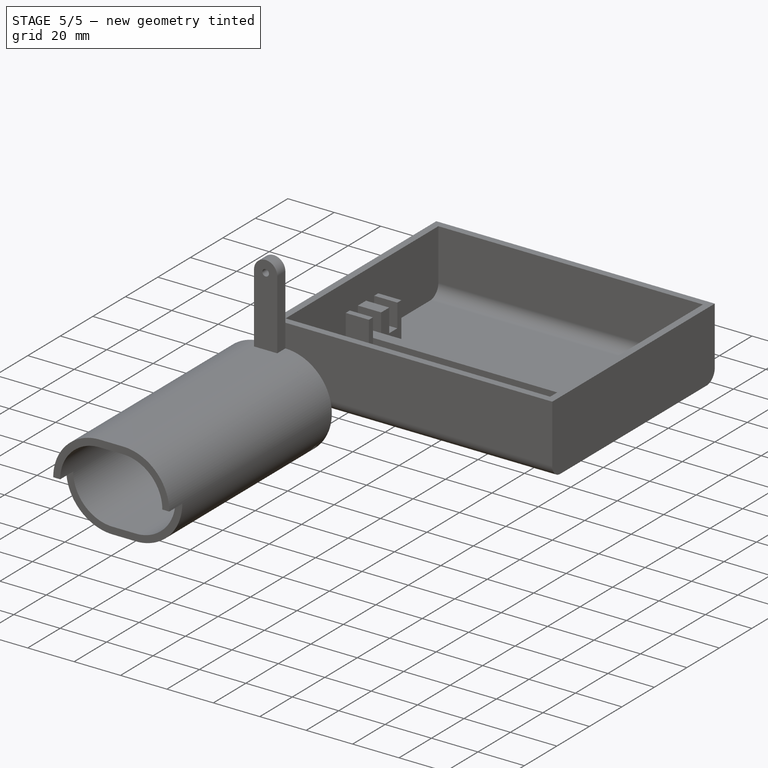
[diagram: stage 5 of 5 — iso view after this stage's code; geometry added in this stage tinted green]
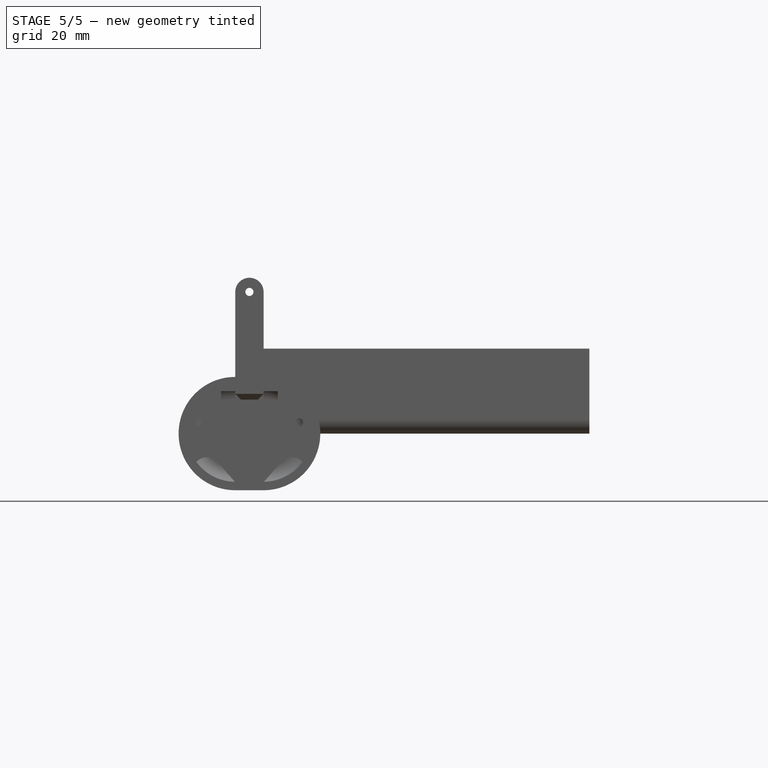
[diagram: stage 5 of 5 — front view after this stage's code; geometry added in this stage tinted green]
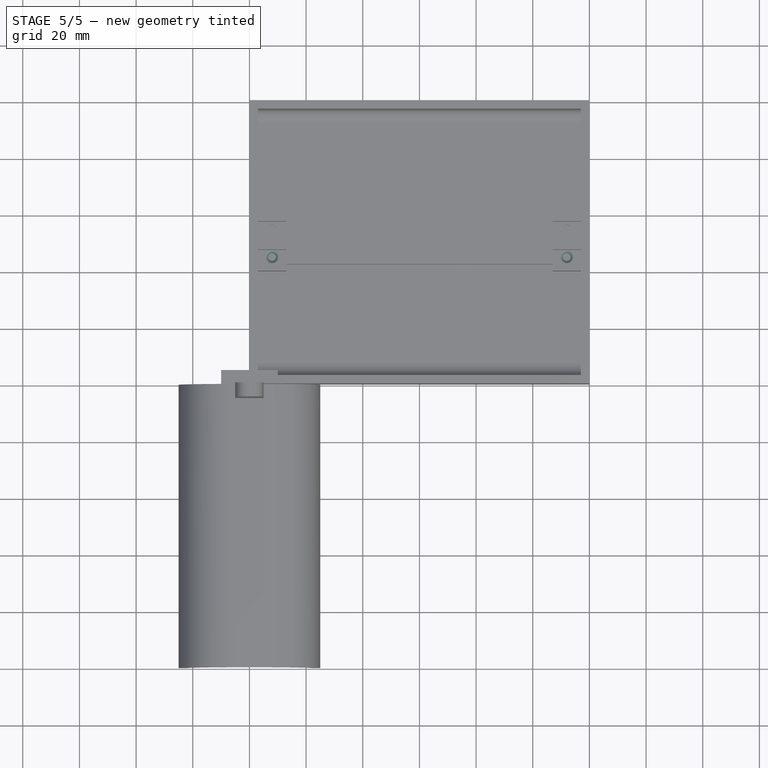
[diagram: stage 5 of 5 — top view after this stage's code; geometry added in this stage tinted green]
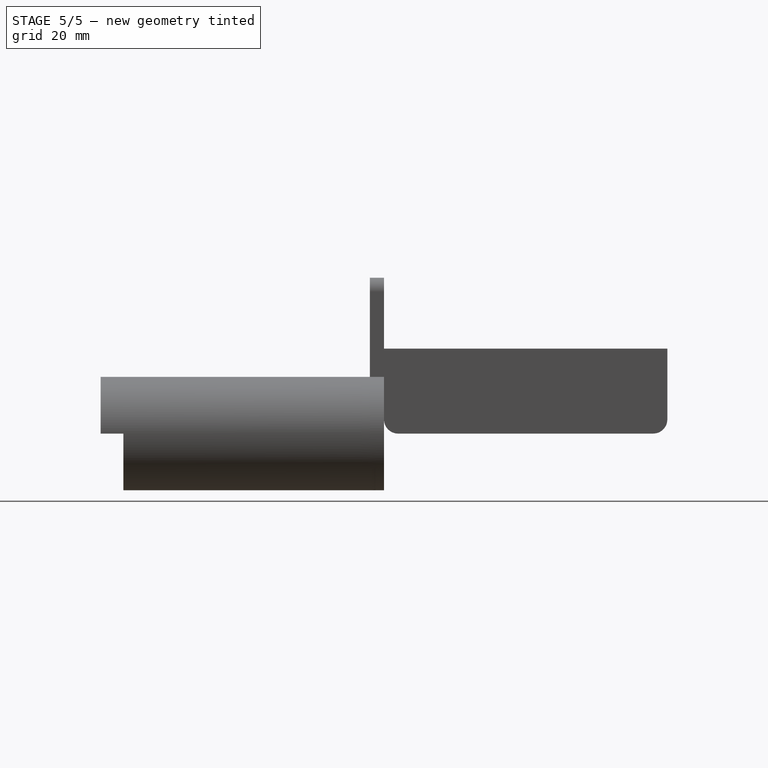
[diagram: stage 5 of 5 — right view after this stage's code; geometry added in this stage tinted green]
FEATURE [Sketcher::SketchObject] Sketch004
  FullyConstrained = true
  MapMode = 5
  Support = -> [XY_Plane001]
  expr: Constraints[10] = Spreadsheet.Internal_Length
  expr: Constraints[11] = Spreadsheet.Base_Wall_Thickness
  expr: Constraints[8] = Spreadsheet.Support_Width
  expr: Constraints[9] = (Spreadsheet.Base_Width - 20) / 2 + 2.5
  sketch-geometry (4):
    g0: LineSegment StartX=3 StartY=47.5 StartZ=0 EndX=117 EndY=47.5 EndZ=0
    g1: LineSegment StartX=117 StartY=47.5 StartZ=0 EndX=117 EndY=42.5 EndZ=0
    g2: LineSegment StartX=117 StartY=42.5 StartZ=0 EndX=3 EndY=42.5 EndZ=0
    g3: LineSegment StartX=3 StartY=42.5 StartZ=0 EndX=3 EndY=47.5 EndZ=0
  constraints (12):
    c: Coincident(g0,g1)
    c: Coincident(g1,g2)
    c: Coincident(g2,g3)
    c: Coincident(g3,g0)
    c: Horizontal(g0)
    c: Horizontal(g2)
    c: Vertical(g1)
    c: Vertical(g3)
    c: DistanceY(g3,g3) = 5
    c: DistanceY(g-1,g2) = 42.5
    c: DistanceX(g0,g0) = 114
    c: DistanceX(g-1,g2) = 3
FEATURE [PartDesign::Pad] Pad001
  Direction = (0,0,1)
  Length = 10
  Length2 = 10
  Profile = -> Sketch004
  ReferenceAxis = -> Sketch004 [N_Axis]
  Type = 0
  expr: Length = Spreadsheet.Support_Height
FEATURE [Sketcher::SketchObject] Sketch005
  FullyConstrained = true
  MapMode = 5
  Placement = pos=(0,0,10) rot=(0,0,1;0rad)
  Support = -> [Pad001]
  expr: Constraints[0] = Spreadsheet.Base_Wall_Thickness + 5
  expr: Constraints[1] = Spreadsheet.M3_Screw / 2
  expr: Constraints[2] = (Spreadsheet.Base_Width - 20) / 2 + 2.5 + Spreadsheet.Support_Width / 2
  expr: Constraints[3] = Spreadsheet.M3_Screw / 2
  expr: Constraints[5] = Spreadsheet.Base_Length - Spreadsheet.Base_Wall_Thickness - 5
  sketch-geometry (2):
    g0: Circle CenterX=8 CenterY=45 CenterZ=0 NormalX=0 NormalY=0 NormalZ=1 AngleXU=0 Radius=1.43
    g1: Circle CenterX=112 CenterY=45 CenterZ=0 NormalX=0 NormalY=0 NormalZ=1 AngleXU=0 Radius=1.43
  constraints (6):
    c: DistanceX(g-1,g0) = 8
    c: Radius(g0) = 1.43
    c: DistanceY(g-1,g0) = 45
    c: Radius(g1) = 1.43
    c: Horizontal(g1,g0)
    c: DistanceX(g-1,g1) = 112
FEATURE [PartDesign::Pocket] Pocket003
  BaseFeature = -> Pad001
  Direction = (0,0,-1)
  Length = 10
  Length2 = 5
  Profile = -> Sketch005
  ReferenceAxis = -> Sketch005 [N_Axis]
  Type = 0
  expr: Length = Spreadsheet.Support_Height
FEATURE [PartDesign::Chamfer] Chamfer
  Angle = 45
  Base = -> Pocket003 [Edge16,Edge15]
  BaseFeature = -> Pocket003
  ChamferType = 0
  FlipDirection = false
  Size = 0.8
  Size2 = 1
  SupportTransform = false
  UseAllEdges = false
FEATURE [Sketcher::SketchObject] Sketch007
  FullyConstrained = true
  MapMode = 5
  Placement = pos=(0,0,10) rot=(0,0,1;0rad)
  Support = -> [Pad002]
  expr: Constraints[0] = Spreadsheet001.Base_Wall_Thickness + 5
  expr: Constraints[1] = Spreadsheet001.M3_Screw / 2
  expr: Constraints[2] = (Spreadsheet001.Base_Width - 20) / 2 + 2.5 + Spreadsheet001.Support_Width / 2
  expr: Constraints[3] = Spreadsheet001.M3_Screw / 2
  expr: Constraints[5] = Spreadsheet001.Base_Length - Spreadsheet001.Base_Wall_Thickness - 5
  sketch-geometry (2):
    g0: Circle CenterX=8 CenterY=45 CenterZ=0 NormalX=0 NormalY=0 NormalZ=1 AngleXU=0 Radius=1.43
    g1: Circle CenterX=112 CenterY=45 CenterZ=0 NormalX=0 NormalY=0 NormalZ=1 AngleXU=0 Radius=1.43
  constraints (6):
    c: DistanceX(g-1,g0) = 8
    c: Radius(g0) = 1.43
    c: DistanceY(g-1,g0) = 45
    c: Radius(g1) = 1.43
    c: Horizontal(g1,g0)
    c: DistanceX(g-1,g1) = 112
FEATURE [PartDesign::Pocket] Pocket004
  BaseFeature = -> Pad002
  Direction = (0,0,-1)
  Length = 10
  Length2 = 5
  Profile = -> Sketch007
  ReferenceAxis = -> Sketch007 [N_Axis]
  Type = 0
  expr: Length = Spreadsheet001.Support_Height
FEATURE [PartDesign::Chamfer] Chamfer001
  Angle = 45
  Base = -> Pocket004 [Edge16,Edge15]
  BaseFeature = -> Pocket004
  ChamferType = 0
  FlipDirection = false
  Size = 0.8
  Size2 = 1
  SupportTransform = false
  UseAllEdges = false
FEATURE [Sketcher::SketchObject] Sketch009
  FullyConstrained = true
  MapMode = 5
  Placement = pos=(0,42.5,0) rot=(1,0,0;1.5708rad)
  Support = -> [Chamfer]
  expr: Constraints[1] = Spreadsheet.Lever_Gap
  expr: Constraints[2] = Spreadsheet.Base_Length / 2 - Spreadsheet.Lever_Gap / 2
  expr: Constraints[3] = Spreadsheet.Support_Height / 2
  expr: Constraints[4] = Spreadsheet.Potentiometer_Diameter / 2
  expr: Constraints[5] = Spreadsheet.Bearing_Diameter / 2
  sketch-geometry (2):
    g0: Circle CenterX=45 CenterY=5 CenterZ=0 NormalX=0 NormalY=0 NormalZ=1 AngleXU=0 Radius=2.75
    g1: Circle CenterX=75 CenterY=5 CenterZ=0 NormalX=0 NormalY=0 NormalZ=1 AngleXU=0 Radius=1.43
  constraints (6):
    c: Horizontal(g0,g1)
    c: DistanceX(g0,g1) = 30
    c: DistanceX(g-1,g0) = 45
    c: DistanceY(g-1,g0) = 5
    c: Radius(g0) = 2.75
    c: Radius(g1) = 1.43
FEATURE [PartDesign::Pocket] Pocket006
  BaseFeature = -> Chamfer
  Direction = (0,1,-2e-16)
  Length = 5
  Length2 = 5
  Profile = -> Sketch009
  ReferenceAxis = -> Sketch009 [N_Axis]
  Type = 0
  expr: Length = Spreadsheet.Support_Width
FEATURE [PartDesign::Body] Body001  label="Support"
  Group = -> [Sketch004,Pad001,Sketch005,Pocket003,Chamfer,Sketch009,Pocket006]
  Origin = -> Origin001
  Placement = pos=(0,0,8) rot=(0,0,1;0rad)
  Tip = -> Pocket006
  expr: .Placement.Base.z = Spreadsheet.Base_Wall_Thickness + 5
FEATURE [Sketcher::SketchObject] Sketch010
  FullyConstrained = true
  MapMode = 5
  Placement = pos=(0,42.5,0) rot=(1,0,0;1.5708rad)
  Support = -> [Chamfer001]
  expr: Constraints[0] = Spreadsheet.Base_Length / 2 + Spreadsheet.Lever_Gap / 2
  expr: Constraints[1] = Spreadsheet.Support_Height / 2
  expr: Constraints[2] = Spreadsheet.M3_Screw / 2
  sketch-geometry (1):
    g0: Circle CenterX=75 CenterY=5 CenterZ=0 NormalX=0 NormalY=0 NormalZ=1 AngleXU=0 Radius=1.43
  constraints (3):
    c: DistanceX(g-1,g0) = 75
    c: DistanceY(g-1,g0) = 5
    c: Radius(g0) = 1.43
FEATURE [PartDesign::Pocket] Pocket007
  BaseFeature = -> Chamfer001
  Direction = (0,1,-2e-16)
  Length = 5
  Length2 = 5
  Profile = -> Sketch010
  ReferenceAxis = -> Sketch010 [N_Axis]
  Type = 0
  expr: Length = Spreadsheet.Support_Width
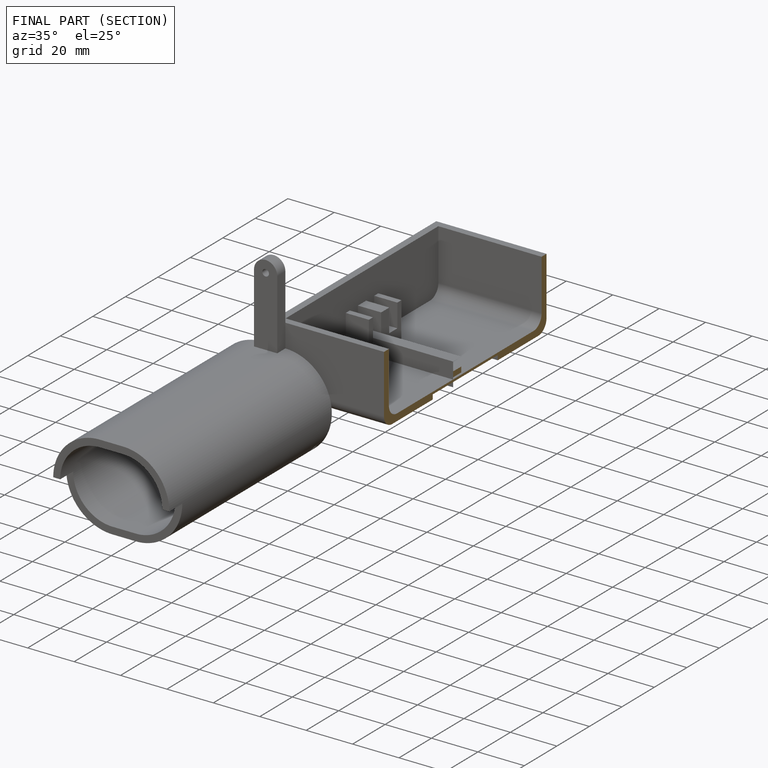
[diagram: finished part — half-section view (interior)]
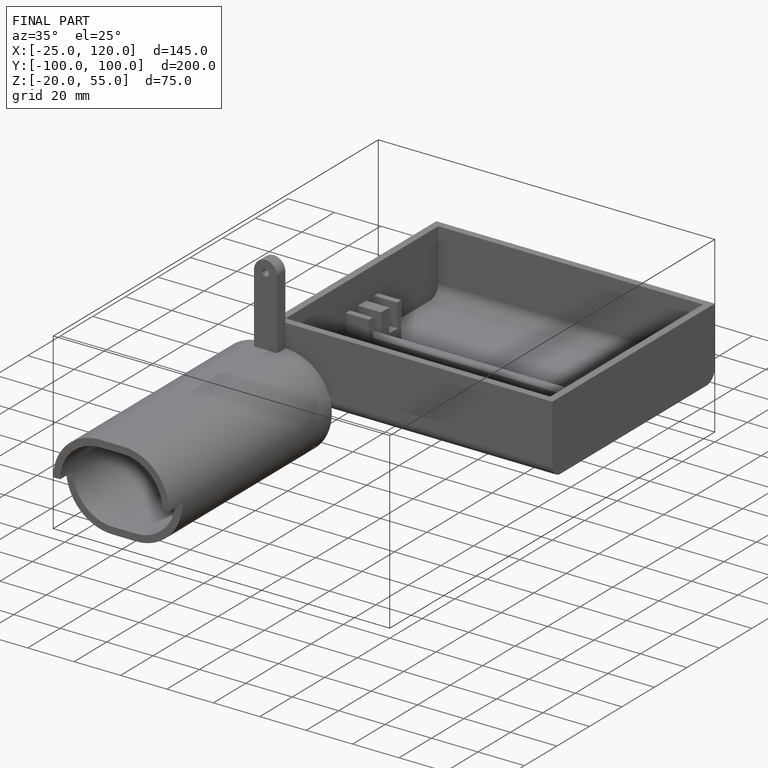
[diagram: finished part — iso view with bounding-box wireframe]
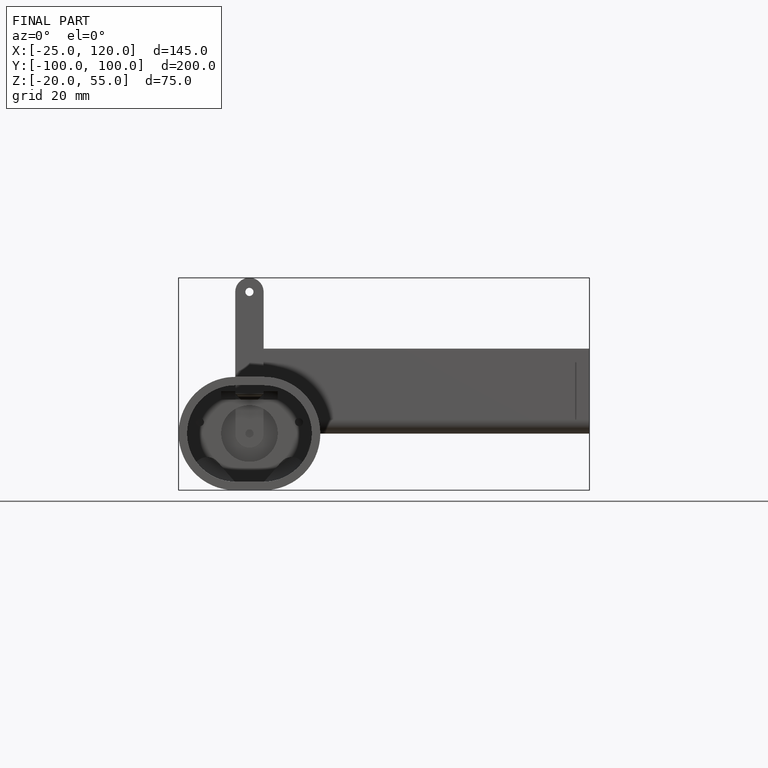
[diagram: finished part — front view with bounding-box wireframe]
